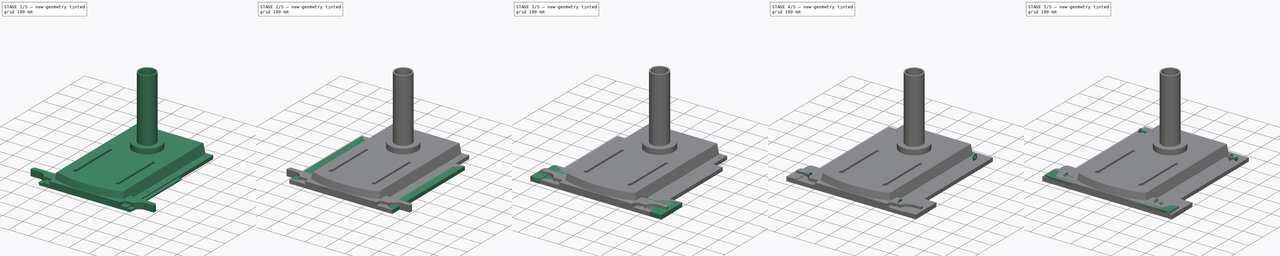
[diagram: build sequence overview — one tinted view per stage of 5, left to right]
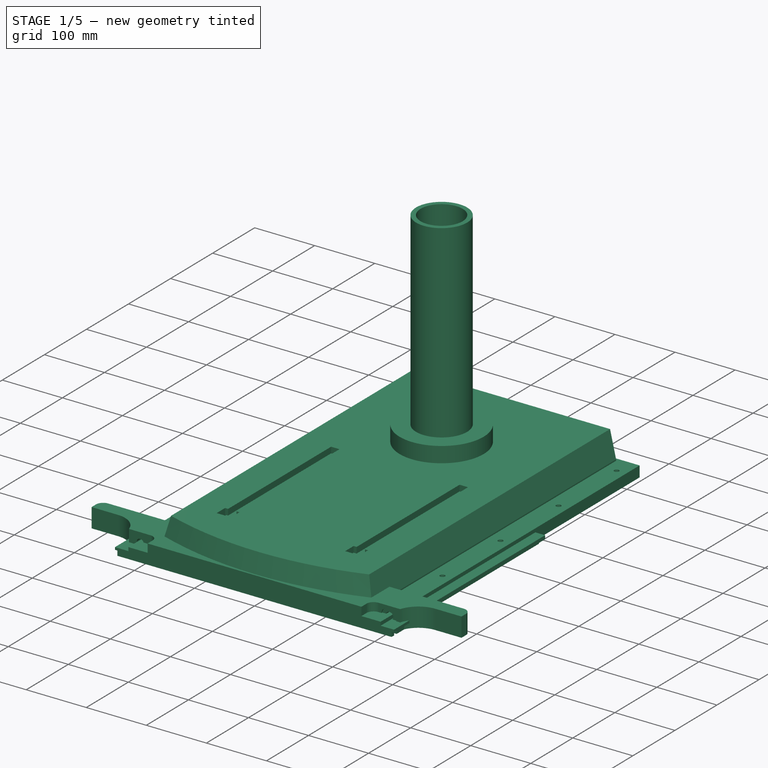
[diagram: stage 1 of 5 — iso view after this stage's code; geometry added in this stage tinted green]
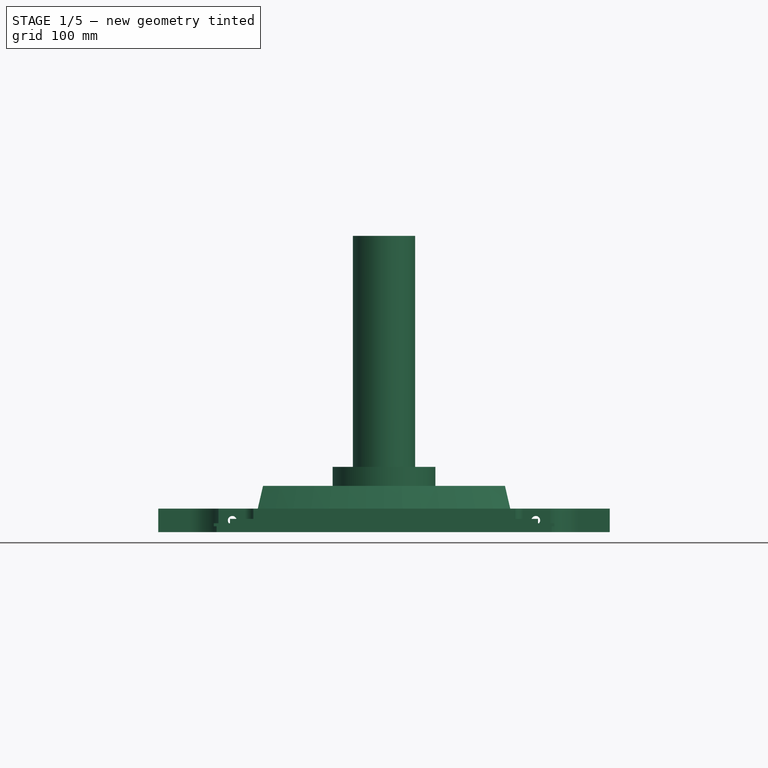
[diagram: stage 1 of 5 — front view after this stage's code; geometry added in this stage tinted green]
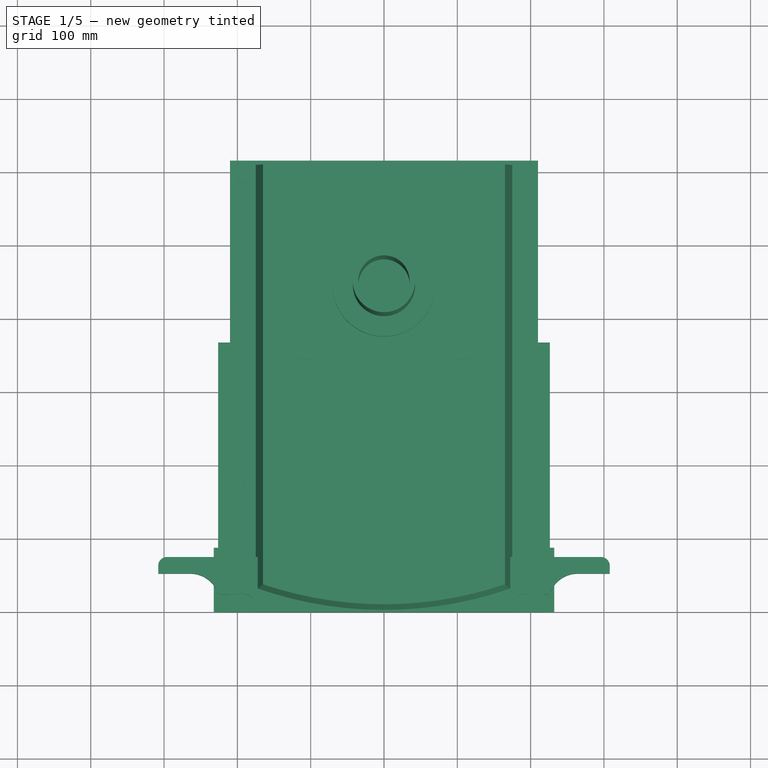
[diagram: stage 1 of 5 — top view after this stage's code; geometry added in this stage tinted green]
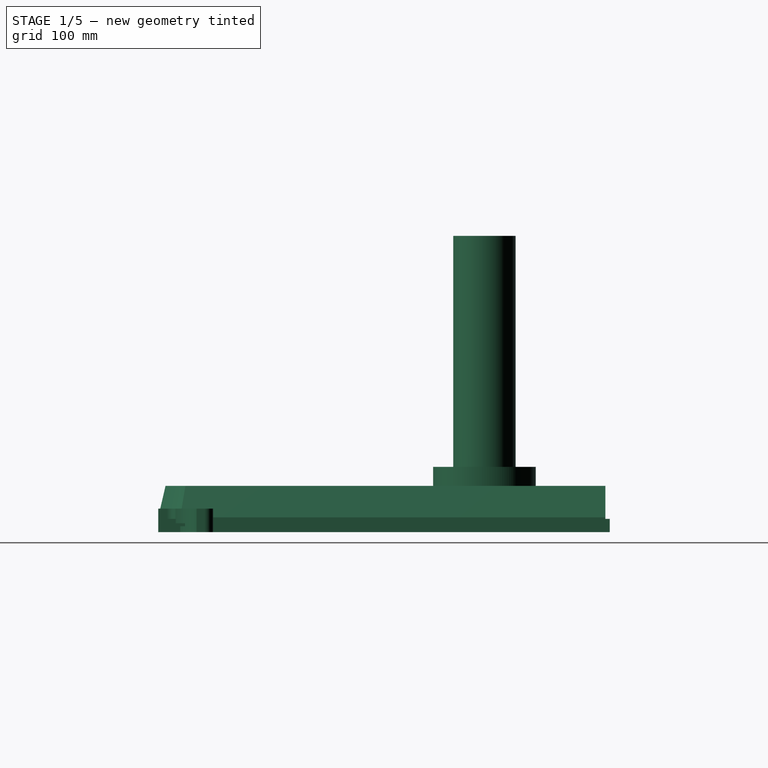
[diagram: stage 1 of 5 — right view after this stage's code; geometry added in this stage tinted green]
FCSTD DOCUMENT  (FreeCAD 0.22R34789 (Git))
Label: drill_press_mobile_base
License: All rights reserved
LicenseURL: http://en.wikipedia.org/wiki/All_rights_reserved
objects: Sketcher::SketchObject×73, PartDesign::Pocket×48, PartDesign::Pad×25, PartDesign::Body×25, PartDesign::Mirrored×19, Part::FeaturePython×13, PartDesign::LinearPattern×5, App::Part×4, App::DocumentObjectGroup×2, PartDesign::MultiTransform×2, Spreadsheet::Sheet×1, PartDesign::FeatureBase×1
note: 284 computed .brp shape members not serialized (recipe doc carries the construction recipe); baked Part::Feature solids carry a one-line shape summary decoded from their .brp

FEATURE [PartDesign::Body] Body023  label="sc_drawer_right"
  Group = -> [Sketch066,Pad024,Sketch067,Pocket040,Mirrored015,Sketch068,Pocket041]
  Origin = -> Origin027
  Placement = pos=(220.3,178,0) rot=(0.57735,0.57735,0.57735;2.0944rad)
  Tip = -> Pocket041
  expr: .Placement.Base.x = <<sk:sc_drawer_front_basic>>.Constraints.drawer_front_length / 2 - Spreadsheet.ply_12
  expr: .Placement.Base.y = Spreadsheet.sc_drawer_depth / 2 - Spreadsheet.ply_12
FEATURE [Sketcher::SketchObject] Sketch069  label="sk:sc_drawer_front_basic002"
  FullyConstrained = true
  MapMode = 5
  Support = -> [XY_Plane030]
  expr: .Constraints.drawer_front_length = Spreadsheet.sc_drawer_width
  expr: Constraints[10] = Spreadsheet.sc_drawer_height
  sketch-geometry (4):
    g0: LineSegment StartX=-232.3 StartY=88 StartZ=0 EndX=232.3 EndY=88 EndZ=0
    g1: LineSegment StartX=232.3 StartY=88 StartZ=0 EndX=232.3 EndY=0 EndZ=0
    g2: LineSegment StartX=232.3 StartY=0 StartZ=0 EndX=-232.3 EndY=0 EndZ=0
    g3: LineSegment StartX=-232.3 StartY=0 StartZ=0 EndX=-232.3 EndY=88 EndZ=0
  constraints (11):
    c: Coincident(g0,g1)
    c: Coincident(g1,g2)
    c: Coincident(g2,g3)
    c: Coincident(g3,g0)
    c: Horizontal(g0)
    c: Horizontal(g2)
    c: Vertical(g1)
    c: Vertical(g3)
    c: Symmetric(g2,g1,g-1)
    c: DistanceX(g2,g2) = 464.6  'drawer_front_length'
    c: DistanceY(g3,g3) = 88
FEATURE [PartDesign::Pad] Pad025
  Direction = (0,0,1)
  Length = 12
  Length2 = 10
  Profile = -> Sketch069
  ReferenceAxis = -> Sketch069 [N_Axis]
  Type = 0
  expr: Length = Spreadsheet.ply_12
FEATURE [Sketcher::SketchObject] Sketch070
  ExternalGeometry = -> [Pad025]
  FullyConstrained = true
  MapMode = 5
  Placement = pos=(0,0,0) rot=(1,0,0;3.14159rad)
  Support = -> [Pad025]
  expr: Constraints[9] = Spreadsheet.ply_12 / 3
  sketch-geometry (4):
    g0: LineSegment StartX=-232.3 StartY=0 StartZ=0 EndX=-228.3 EndY=0 EndZ=0
    g1: LineSegment StartX=-228.3 StartY=0 StartZ=0 EndX=-228.3 EndY=-88 EndZ=0
    g2: LineSegment StartX=-228.3 StartY=-88 StartZ=0 EndX=-232.3 EndY=-88 EndZ=0
    g3: LineSegment StartX=-232.3 StartY=-88 StartZ=0 EndX=-232.3 EndY=0 EndZ=0
  constraints (10):
    c: Coincident(g0,g1)
    c: Coincident(g1,g2)
    c: Coincident(g2,g3)
    c: Coincident(g3,g0)
    c: Horizontal(g0)
    c: Horizontal(g2)
    c: Vertical(g1)
    c: Coincident(g0,g-3)
    c: Coincident(g2,g-3)
    c: DistanceX(g2,g2) = 4
FEATURE [PartDesign::Pocket] Pocket042
  BaseFeature = -> Pad025
  Direction = (0,0,1)
  Length = 8
  Length2 = 5
  Profile = -> Sketch070
  ReferenceAxis = -> Sketch070 [N_Axis]
  Type = 0
  expr: Length = 2 * Spreadsheet.ply_12 / 3
FEATURE [PartDesign::Mirrored] Mirrored016
  BaseFeature = -> Pocket042
  MirrorPlane = -> Sketch070 [V_Axis]
  Originals = -> [Pocket042]
FEATURE [Sketcher::SketchObject] Sketch071
  FullyConstrained = true
  MapMode = 5
  Placement = pos=(0,0,0) rot=(1,0,0;3.14159rad)
  Support = -> [Mirrored016]
  expr: Constraints[7] = Spreadsheet.ply_6
  expr: Constraints[8] = Spreadsheet.ply_6
  expr: Constraints[9] = Sketch069.Constraints.drawer_front_length - 2 * Spreadsheet.ply_12 / 3
  sketch-geometry (4):
    g0: LineSegment StartX=-228.3 StartY=-6 StartZ=0 EndX=228.3 EndY=-6 EndZ=0
    g1: LineSegment StartX=228.3 StartY=-6 StartZ=0 EndX=228.3 EndY=-12 EndZ=0
    g2: LineSegment StartX=228.3 StartY=-12 StartZ=0 EndX=-228.3 EndY=-12 EndZ=0
    g3: LineSegment StartX=-228.3 StartY=-12 StartZ=0 EndX=-228.3 EndY=-6 EndZ=0
  constraints (11):
    c: Coincident(g0,g1)
    c: Coincident(g1,g2)
    c: Coincident(g2,g3)
    c: Coincident(g3,g0)
    c: Horizontal(g2)
    c: Vertical(g1)
    c: Vertical(g3)
    c: DistanceY(g0,g-1) = 6
    c: DistanceY(g3,g3) = 6
    c: DistanceX(g0,g0) = 456.6
    c: Symmetric(g0,g0,g-2)
FEATURE [PartDesign::Pocket] Pocket043
  BaseFeature = -> Mirrored016
  Direction = (0,0,1)
  Length = 6
  Length2 = 5
  Profile = -> Sketch071
  ReferenceAxis = -> Sketch071 [N_Axis]
  Type = 0
  expr: Length = Spreadsheet.ply_6
FEATURE [PartDesign::Body] Body024  label="sc_drawer_back"
  Group = -> [Sketch069,Pad025,Sketch070,Pocket042,Mirrored016,Sketch071,Pocket043]
  Origin = -> Origin028
  Placement = pos=(0,356,0) rot=(0,0.707107,0.707107;3.14159rad)
  Tip = -> Pocket043
  expr: .Placement.Base.y = Spreadsheet.sc_drawer_depth - 2 * Spreadsheet.ply_12
FEATURE [Sketcher::SketchObject] Sketch072
  FullyConstrained = true
  MapMode = 5
  Support = -> [XY_Plane031]
  expr: Constraints[10] = Spreadsheet.sc_drawer_depth - 2 * Spreadsheet.ply_6
  expr: Constraints[9] = Spreadsheet.sc_drawer_width - 2 * Spreadsheet.ply_6
  sketch-geometry (4):
    g0: LineSegment StartX=-226.3 StartY=368 StartZ=0 EndX=226.3 EndY=368 EndZ=0
    g1: LineSegment StartX=226.3 StartY=368 StartZ=0 EndX=226.3 EndY=0 EndZ=0
    g2: LineSegment StartX=226.3 StartY=0 StartZ=0 EndX=-226.3 EndY=0 EndZ=0
    g3: LineSegment StartX=-226.3 StartY=0 StartZ=0 EndX=-226.3 EndY=368 EndZ=0
  constraints (11):
    c: Coincident(g0,g1)
    c: Coincident(g1,g2)
    c: Coincident(g2,g3)
    c: Coincident(g3,g0)
    c: Horizontal(g0)
    c: Horizontal(g2)
    c: Vertical(g1)
    c: Vertical(g3)
    c: Symmetric(g2,g1,g-1)
    c: DistanceX(g2,g2) = 452.6
    c: DistanceY(g3,g3) = 368
FEATURE [PartDesign::Pad] Pad026
  Direction = (0,0,1)
  Length = 12
  Length2 = 10
  Profile = -> Sketch072
  ReferenceAxis = -> Sketch072 [N_Axis]
  Type = 0
  expr: Length = Spreadsheet.ply_12
FEATURE [Sketcher::SketchObject] Sketch073
  ExternalGeometry = -> [Pad026]
  FullyConstrained = true
  MapMode = 5
  Placement = pos=(0,0,0) rot=(1,0,0;3.14159rad)
  Support = -> [Pad026]
  expr: Constraints[7] = Spreadsheet.ply_6
  sketch-geometry (4):
    g0: LineSegment StartX=-226.3 StartY=0 StartZ=0 EndX=226.3 EndY=0 EndZ=0
    g1: LineSegment StartX=226.3 StartY=0 StartZ=0 EndX=226.3 EndY=-6 EndZ=0
    g2: LineSegment StartX=226.3 StartY=-6 StartZ=0 EndX=-226.3 EndY=-6 EndZ=0
    g3: LineSegment StartX=-226.3 StartY=-6 StartZ=0 EndX=-226.3 EndY=0 EndZ=0
  constraints (10):
    c: Coincident(g0,g1)
    c: Coincident(g1,g2)
    c: Coincident(g2,g3)
    c: Coincident(g3,g0)
    c: Horizontal(g2)
    c: Vertical(g1)
    c: Vertical(g3)
    c: DistanceY(g3,g3) = 6
    c: Coincident(g0,g-3)
    c: Coincident(g0,g-3)
FEATURE [PartDesign::Pocket] Pocket044
  BaseFeature = -> Pad026
  Direction = (0,0,1)
  Length = 6
  Length2 = 5
  Profile = -> Sketch073
  ReferenceAxis = -> Sketch073 [N_Axis]
  Type = 0
  expr: Length = Spreadsheet.ply_6
FEATURE [Sketcher::SketchObject] Sketch074
  ExternalGeometry = -> [Pocket044]
  FullyConstrained = true
  MapMode = 5
  Placement = pos=(0,0,0) rot=(1,0,0;3.14159rad)
  Support = -> [Pocket044]
  expr: Constraints[9] = Spreadsheet.ply_6
  sketch-geometry (4):
    g0: LineSegment StartX=-226.3 StartY=-362 StartZ=0 EndX=226.3 EndY=-362 EndZ=0
    g1: LineSegment StartX=226.3 StartY=-362 StartZ=0 EndX=226.3 EndY=-368 EndZ=0
    g2: LineSegment StartX=226.3 StartY=-368 StartZ=0 EndX=-226.3 EndY=-368 EndZ=0
    g3: LineSegment StartX=-226.3 StartY=-368 StartZ=0 EndX=-226.3 EndY=-362 EndZ=0
  constraints (10):
    c: Coincident(g0,g1)
    c: Coincident(g1,g2)
    c: Coincident(g2,g3)
    c: Coincident(g3,g0)
    c: Horizontal(g0)
    c: Vertical(g1)
    c: Vertical(g3)
    c: Coincident(g2,g-3)
    c: Coincident(g1,g-3)
    c: DistanceY(g1,g1) = 6
FEATURE [PartDesign::Pocket] Pocket045
  BaseFeature = -> Pocket044
  Direction = (0,0,1)
  Length = 6
  Length2 = 5
  Profile = -> Sketch074
  ReferenceAxis = -> Sketch074 [N_Axis]
  Type = 0
  expr: Length = Spreadsheet.ply_6
FEATURE [Sketcher::SketchObject] Sketch075
  ExternalGeometry = -> [Pocket045]
  FullyConstrained = true
  MapMode = 5
  Placement = pos=(0,0,0) rot=(1,0,0;3.14159rad)
  Support = -> [Pocket045]
  expr: Constraints[7] = Spreadsheet.ply_6
  sketch-geometry (4):
    g0: LineSegment StartX=-226.3 StartY=-6 StartZ=0 EndX=-220.3 EndY=-6 EndZ=0
    g1: LineSegment StartX=-220.3 StartY=-6 StartZ=0 EndX=-220.3 EndY=-362 EndZ=0
    g2: LineSegment StartX=-220.3 StartY=-362 StartZ=0 EndX=-226.3 EndY=-362 EndZ=0
    g3: LineSegment StartX=-226.3 StartY=-362 StartZ=0 EndX=-226.3 EndY=-6 EndZ=0
  constraints (10):
    c: Coincident(g0,g1)
    c: Coincident(g1,g2)
    c: Coincident(g2,g3)
    c: Coincident(g3,g0)
    c: Horizontal(g0)
    c: Horizontal(g2)
    c: Vertical(g1)
    c: DistanceX(g0,g0) = 6
    c: Coincident(g2,g-3)
    c: Coincident(g0,g-3)
FEATURE [PartDesign::Pocket] Pocket046
  BaseFeature = -> Pocket045
  Direction = (0,0,1)
  Length = 6
  Length2 = 5
  Profile = -> Sketch075
  ReferenceAxis = -> Sketch075 [N_Axis]
  Type = 0
  expr: Length = Spreadsheet.ply_6
FEATURE [PartDesign::Mirrored] Mirrored017
  BaseFeature = -> Pocket046
  MirrorPlane = -> Sketch075 [V_Axis]
  Originals = -> [Pocket046]
FEATURE [PartDesign::Body] Body025  label="sc_drawer_bottom"
  Group = -> [Sketch072,Pad026,Sketch073,Pocket044,Sketch074,Pocket045,Sketch075,Pocket046,Mirrored017]
  Origin = -> Origin029
  Placement = pos=(0,-6,0) rot=(0,0,1;0rad)
  Tip = -> Mirrored017
  expr: .Placement.Base.y = -Spreadsheet.ply_6
FEATURE [App::Part] Part003  label="storage_cabinet_drawer"
  Group = -> [Body021,Body022,Body023,Body024,Body025]
  Origin = -> Origin024
  Placement = pos=(0,-6,168) rot=(0,0,1;0rad)
  expr: .Placement.Base.z = 150 + 18
FEATURE [Sketcher::SketchObject] Sketch076
  FullyConstrained = true
  MapMode = 5
  Support = -> [XY_Plane032]
  expr: Constraints[17] = 2 * Spreadsheet.base_radius
  expr: Constraints[7] = Spreadsheet.drill_press_iron_base_depth
  expr: Constraints[8] = Spreadsheet.drill_press_iron_base_height
  sketch-geometry (8):
    g0: LineSegment StartX=-296 StartY=75 StartZ=0 EndX=296 EndY=75 EndZ=0
    g1: LineSegment StartX=308 StartY=63 StartZ=0 EndX=308 EndY=0 EndZ=0
    g2: LineSegment StartX=308 StartY=0 StartZ=0 EndX=-308 EndY=0 EndZ=0
    g3: LineSegment StartX=-308 StartY=0 StartZ=0 EndX=-308 EndY=63 EndZ=0
    g4: ArcOfCircle CenterX=-296 CenterY=63 CenterZ=0 NormalX=0 NormalY=0 NormalZ=1 AngleXU=0 Radius=12 StartAngle=1.5708 EndAngle=3.14159
    g5: GeomPoint X=-308 Y=75 Z=0
    g6: ArcOfCircle CenterX=296 CenterY=63 CenterZ=0 NormalX=0 NormalY=0 NormalZ=1 AngleXU=0 Radius=12 StartAngle=0 EndAngle=1.5708
    g7: GeomPoint X=308 Y=75 Z=0
  constraints (19):
    c: Coincident(g1,g2)
    c: Coincident(g2,g3)
    c: Horizontal(g0)
    c: Horizontal(g2)
    c: Vertical(g1)
    c: Vertical(g3)
    c: Symmetric(g2,g1,g-1)
    c: DistanceX(g2,g1) = 616
    c: DistanceY(g3,g5) = 75
    c: PointOnObject(g5,g3)
    c: PointOnObject(g5,g0)
    c: Tangent(g3,g4) = 1.5708
    c: Tangent(g0,g4) = 1.5708
    c: PointOnObject(g7,g0)
    c: PointOnObject(g7,g1)
    c: Tangent(g0,g6) = 1.5708
    c: Tangent(g1,g6) = 1.5708
    c: Radius(g4) = 12
    c: Equal(g4,g6)
FEATURE [PartDesign::Pad] Pad027
  Direction = (0,0,1)
  Length = 32
  Length2 = 10
  Profile = -> Sketch076
  ReferenceAxis = -> Sketch076 [N_Axis]
  Type = 0
  expr: Length = Spreadsheet.cleat_depth
FEATURE [Sketcher::SketchObject] Sketch077
  FullyConstrained = true
  MapMode = 5
  Placement = pos=(0,0,32) rot=(0,0,1;0rad)
  Support = -> [Pad027]
  expr: Constraints[14] = 2 * Spreadsheet.base_radius
  expr: Constraints[9] = Spreadsheet.drill_press_iron_base_depth / 2
  sketch-geometry (6):
    g0: LineSegment StartX=-308 StartY=24 StartZ=0 EndX=-190 EndY=24 EndZ=0
    g1: LineSegment StartX=-178 StartY=12 StartZ=0 EndX=-178 EndY=0 EndZ=0
    g2: LineSegment StartX=-178 StartY=0 StartZ=0 EndX=-308 EndY=0 EndZ=0
    g3: LineSegment StartX=-308 StartY=0 StartZ=0 EndX=-308 EndY=24 EndZ=0
    g4: ArcOfCircle CenterX=-190 CenterY=12 CenterZ=0 NormalX=0 NormalY=0 NormalZ=1 AngleXU=0 Radius=12 StartAngle=0 EndAngle=1.5708
    g5: GeomPoint X=-178 Y=24 Z=0
  constraints (16):
    c: Coincident(g1,g2)
    c: Coincident(g2,g3)
    c: Coincident(g3,g0)
    c: Horizontal(g0)
    c: Horizontal(g2)
    c: Vertical(g1)
    c: Vertical(g3)
    c: DistanceY(g-1,g1) = 0
    c: DistanceY(g-1,g5) = 24
    c: DistanceX(g0,g-1) = 308
    c: PointOnObject(g5,g0)
    c: PointOnObject(g5,g1)
    c: Tangent(g0,g4) = 1.5708
    c: Tangent(g1,g4) = 1.5708
    c: Radius(g4) = 12
    c: DistanceX(g2,g2) = 130
FEATURE [PartDesign::Pocket] Pocket047
  BaseFeature = -> Pad027
  Direction = (0,0,-1)
  Length = 32
  Length2 = 5
  Profile = -> Sketch077
  ReferenceAxis = -> Sketch077 [N_Axis]
  Type = 0
  expr: Length = Spreadsheet.cleat_depth
FEATURE [PartDesign::Mirrored] Mirrored018
  BaseFeature = -> Pocket047
  MirrorPlane = -> Sketch077 [V_Axis]
  Originals = -> [Pocket047]
FEATURE [Sketcher::SketchObject] Sketch078
  FullyConstrained = true
  MapMode = 5
  Placement = pos=(0,0,32) rot=(0,0,1;0rad)
  Support = -> [Mirrored018]
  expr: Constraints[0] = Spreadsheet.drill_press_iron_base_depth / 2 - Spreadsheet.wheel_distance_l
  expr: Constraints[11] = Spreadsheet.drill_press_iron_base_depth / 2 - Spreadsheet.wheel_distance_l
  expr: Constraints[1] = Spreadsheet.wheel_distance_h
  expr: Constraints[2] = Spreadsheet.wheel_od + Spreadsheet.base_radius
  expr: Constraints[8] = Spreadsheet.drill_press_iron_base_depth / 2 - Spreadsheet.wheel_distance_l
  expr: Constraints[9] = (Spreadsheet.wheel_od + Spreadsheet.base_radius) / 2 - Spreadsheet.wheel_distance_h
  sketch-geometry (4):
    g0: ArcOfCircle CenterX=-264.5 CenterY=12 CenterZ=0 NormalX=0 NormalY=0 NormalZ=1 AngleXU=0 Radius=40.5 StartAngle=4.71239 EndAngle=7.85398
    g1: LineSegment StartX=-345.5 StartY=52.5 StartZ=0 EndX=-264.5 EndY=52.5 EndZ=0
    g2: LineSegment StartX=-264.5 StartY=-28.5 StartZ=0 EndX=-345.5 EndY=-28.5 EndZ=0
    g3: LineSegment StartX=-345.5 StartY=-28.5 StartZ=0 EndX=-345.5 EndY=52.5 EndZ=0
  constraints (14):
    c: DistanceX(g0,g-1) = 264.5
    c: DistanceY(g-1,g0) = 12
    c: Diameter(g0) = 81
    c: Coincident(g2,g3)
    c: Coincident(g3,g1)
    c: Horizontal(g1)
    c: Horizontal(g2)
    c: Vertical(g3)
    c: DistanceX(g2,g-1) = 264.5
    c: DistanceY(g2,g-1) = 28.5
    c: Coincident(g0,g1)
    c: DistanceX(g0,g-1) = 264.5
    c: Equal(g2,g3)
    c: Tangent(g2,g0,g0) = 1.5708
FEATURE [PartDesign::Pocket] Pocket048
  BaseFeature = -> Mirrored018
  Direction = (0,0,-1)
  Length = 32
  Length2 = 5
  Profile = -> Sketch078
  ReferenceAxis = -> Sketch078 [N_Axis]
  Type = 0
  expr: Length = Spreadsheet.cleat_depth
FEATURE [PartDesign::Mirrored] Mirrored019
  BaseFeature = -> Pocket048
  MirrorPlane = -> Sketch078 [V_Axis]
  Originals = -> [Pocket048]
FEATURE [Sketcher::SketchObject] Sketch079
  FullyConstrained = true
  MapMode = 5
  Placement = pos=(0,0,0) rot=(1,0,0;3.14159rad)
  Support = -> [Mirrored019]
  expr: Constraints[10] = Spreadsheet.drill_press_iron_base_depth / 2 - 4 * Spreadsheet.base_radius
  expr: Constraints[6] = Spreadsheet.drill_press_iron_base_height / 3
  expr: Constraints[7] = 1 / 3 * Spreadsheet.drill_press_iron_base_depth / 2
  expr: Constraints[8] = Spreadsheet.drill_press_iron_base_height - (Spreadsheet.drill_press_iron_base_height - (Spreadsheet.wheel_distance_h + (Spreadsheet.wheel_od + Spreadsheet.base_radius) / 2)) / 2
  sketch-geometry (5):
    g0: Circle CenterX=-284 CenterY=-63.75 CenterZ=0 NormalX=0 NormalY=0 NormalZ=1 AngleXU=0 Radius=4
    g1: Circle CenterX=-102.667 CenterY=-25 CenterZ=0 NormalX=0 NormalY=0 NormalZ=1 AngleXU=0 Radius=4
    g2: Circle CenterX=-3.7e-15 CenterY=-25 CenterZ=0 NormalX=0 NormalY=0 NormalZ=1 AngleXU=0 Radius=4
    g3: Circle CenterX=102.667 CenterY=-25 CenterZ=0 NormalX=0 NormalY=0 NormalZ=1 AngleXU=0 Radius=4
    g4: Circle CenterX=284 CenterY=-63.75 CenterZ=0 NormalX=0 NormalY=0 NormalZ=1 AngleXU=0 Radius=4
  constraints (12):
    c: Equal(g0,g1)
    c: Equal(g1,g2)
    c: Equal(g2,g3)
    c: Equal(g3,g4)
    c: Symmetric(g1,g3,g-2)
    c: Symmetric(g1,g3,g2)
    c: DistanceY(g2,g-1) = 25
    c: DistanceX(g1,g-1) = 102.667
    c: DistanceY(g0,g-1) = 63.75
    c: Symmetric(g0,g4,g-2)
    c: DistanceX(g0,g-1) = 284
    c: Diameter(g0) = 8
FEATURE [PartDesign::Pocket] Pocket049
  BaseFeature = -> Mirrored019
  Direction = (0,0,1)
  Length = 10
  Length2 = 5
  Profile = -> Sketch079
  ReferenceAxis = -> Sketch079 [N_Axis]
  Type = 0
FEATURE [Sketcher::SketchObject] Sketch080
  FullyConstrained = true
  MapMode = 5
  Placement = pos=(0,24,0) rot=(1,0,0;1.5708rad)
  Support = -> [Pocket049]
  expr: Constraints[0] = Spreadsheet.cleat_depth / 2
  expr: Constraints[1] = (Spreadsheet.drill_press_iron_base_depth / 2 - Spreadsheet.wheel_distance_l - (Spreadsheet.wheel_od + Spreadsheet.base_radius) / 2 - (Spreadsheet.drill_press_iron_base_depth / 2 - 130 mm + 12 mm)) / 2 + Spreadsheet.drill_press_iron_base_depth / 2 - 130 mm + 12 mm
  expr: Constraints[2] = Spreadsheet.DIN1624_M10_d1
  sketch-geometry (1):
    g0: Circle CenterX=207 CenterY=16 CenterZ=0 NormalX=0 NormalY=0 NormalZ=1 AngleXU=0 Radius=6
  constraints (3):
    c: DistanceY(g-1,g0) = 16
    c: DistanceX(g-1,g0) = 207
    c: Diameter(g0) = 12
FEATURE [PartDesign::Pocket] Pocket050
  BaseFeature = -> Pocket049
  Direction = (0,1,-2e-16)
  Length = 51
  Length2 = 5
  Profile = -> Sketch080
  ReferenceAxis = -> Sketch080 [N_Axis]
  Type = 0
  expr: Length = Spreadsheet.drill_press_iron_base_height - 24 mm
FEATURE [Sketcher::SketchObject] Sketch081
  ExternalGeometry = -> [Pocket050]
  FullyConstrained = true
  MapMode = 5
  Placement = pos=(0,24,0) rot=(1,0,0;1.5708rad)
  Support = -> [Pocket050]
  expr: Constraints[1] = Spreadsheet.DIN1624_M10_D
  sketch-geometry (1):
    g0: Circle CenterX=207 CenterY=16 CenterZ=0 NormalX=0 NormalY=0 NormalZ=1 AngleXU=0 Radius=12.75
  constraints (2):
    c: Coincident(g0,g-3)
    c: Diameter(g0) = 25.5
FEATURE [PartDesign::Pocket] Pocket051
  BaseFeature = -> Pocket050
  Direction = (0,1,-2e-16)
  Length = 1.8
  Length2 = 5
  Profile = -> Sketch081
  ReferenceAxis = -> Sketch081 [N_Axis]
  Type = 0
  expr: Length = 1.5 * Spreadsheet.DIN1624_M10_a
FEATURE [PartDesign::Mirrored] Mirrored020
  BaseFeature = -> Pocket051
  MirrorPlane = -> Sketch080 [V_Axis]
  Originals = -> [Pocket050]
FEATURE [PartDesign::Body] Body026  label="wheel_blocking_right"
  Group = -> [Sketch076,Pad027,Sketch077,Pocket047,Mirrored018,Sketch078,Pocket048,Mirrored019,Sketch079,Pocket049,Sketch080,Pocket050,Sketch081,Pocket051,Mirrored020]
  Origin = -> Origin030
  Placement = pos=(210,308,18) rot=(0.57735,0.57735,0.57735;2.0944rad)
  Tip = -> Mirrored020
  expr: .Placement.Base.x = Spreadsheet.drill_press_iron_base_width / 2 + Spreadsheet.cleat_depth
  expr: .Placement.Base.y = Spreadsheet.drill_press_iron_base_depth / 2
  expr: .Placement.Base.z = Spreadsheet.ply_18
FEATURE [App::DocumentObjectGroup] Group001  label="wheel_blockings"
  Group = -> [Body007,Body026]
FEATURE [Sketcher::SketchObject] Sketch
  FullyConstrained = true
  MapMode = 5
  Support = -> [XY_Plane]
  expr: Constraints[8] = Spreadsheet.drill_press_iron_base_depth
  expr: Constraints[9] = Spreadsheet.drill_press_iron_base_width + 2 * 32 mm
  sketch-geometry (4):
    g0: LineSegment StartX=-210 StartY=616 StartZ=0 EndX=210 EndY=616 EndZ=0
    g1: LineSegment StartX=210 StartY=616 StartZ=0 EndX=210 EndY=0 EndZ=0
    g2: LineSegment StartX=210 StartY=-2e-16 StartZ=0 EndX=-210 EndY=-2e-16 EndZ=0
    g3: LineSegment StartX=-210 StartY=-2e-16 StartZ=0 EndX=-210 EndY=616 EndZ=0
  constraints (11):
    c: Coincident(g0,g1)
    c: Coincident(g1,g2)
    c: Coincident(g2,g3)
    c: Coincident(g3,g0)
    c: Horizontal(g0)
    c: Horizontal(g2)
    c: Vertical(g1)
    c: Vertical(g3)
    c: DistanceY(g3,g3) = 616
    c: DistanceX(g2,g2) = 420
    c: Symmetric(g2,g1,g-1)
FEATURE [PartDesign::Pad] Pad
  Direction = (0,0,1)
  Length = 18
  Length2 = 10
  Profile = -> Sketch
  ReferenceAxis = -> Sketch [N_Axis]
  Type = 0
  expr: Length = Spreadsheet.ply_18
FEATURE [Sketcher::SketchObject] Sketch014
  FullyConstrained = true
  MapMode = 5
  Placement = pos=(0,0,18) rot=(0,0,1;0rad)
  Support = -> [Pad]
  expr: Constraints[0] = 8 mm
  expr: Constraints[1] = (Spreadsheet.drill_press_iron_base_width + Spreadsheet.cleat_depth) / 2
  expr: Constraints[2] = 32 mm
  sketch-geometry (1):
    g0: Circle CenterX=-194 CenterY=32 CenterZ=0 NormalX=0 NormalY=0 NormalZ=1 AngleXU=0 Radius=4
  constraints (3):
    c: Diameter(g0) = 8
    c: DistanceX(g0,g-1) = 194
    c: DistanceY(g-1,g0) = 32
FEATURE [PartDesign::Pocket] Pocket006
  BaseFeature = -> Pad
  Direction = (0,0,-1)
  Length = 9
  Length2 = 5
  Profile = -> Sketch014
  ReferenceAxis = -> Sketch014 [N_Axis]
  Type = 0
  expr: Length = Spreadsheet.ply_18 / 2
FEATURE [PartDesign::LinearPattern] LinearPattern001
  Direction = -> Sketch014 [V_Axis]
  Length = 552
  Mode = 0
  Occurrences = 5
  Offset = 138
  expr: Length = Spreadsheet.drill_press_iron_base_depth - 2 * 32 mm
FEATURE [PartDesign::LinearPattern] LinearPattern
  Direction = -> X_Axis
  Length = 388
  Mode = 0
  Occurrences = 2
  Offset = 388
  expr: Length = Spreadsheet.drill_press_iron_base_width + Spreadsheet.cleat_depth
FEATURE [PartDesign::MultiTransform] MultiTransform
  BaseFeature = -> Pocket006
  Originals = -> [Pocket006]
  Transformations = -> [LinearPattern,LinearPattern001]
FEATURE [PartDesign::Body] Body  label="base"
  Group = -> [Sketch,Pad,Sketch014,Pocket006,MultiTransform,LinearPattern,LinearPattern001]
  Origin = -> Origin
  Tip = -> MultiTransform
FEATURE [App::Part] Part  label="mobile_base"
  Group = -> [Body,Body001,Group,Body003,Body004,Body005,Body006,Washer004,Washer005,Washer006,Washer007,Screw,Screw001,Screw002,Screw003,Group001,Body007,Body008,Washer,Washer008,Washer009,Washer010,Body026]
  Origin = -> Origin003
FEATURE [Part::FeaturePython] b_drill_press_001_  label="drill_press_001"  # a2plus imported part (geometry in sourceFile) (typed FeaturePython)
  Placement = pos=(0,0,18) rot=(0,0,1;0rad)
  a2p_Version = 0.4.61
  fixedPosition = true
  objectType = a2pPart
  sourceFile = ./drill_press.FCStd
  subassemblyImport = false
  timeLastImport = 1.7042e+09
  updateColors = true
  expr: .Placement.Base.z = Spreadsheet.ply_18
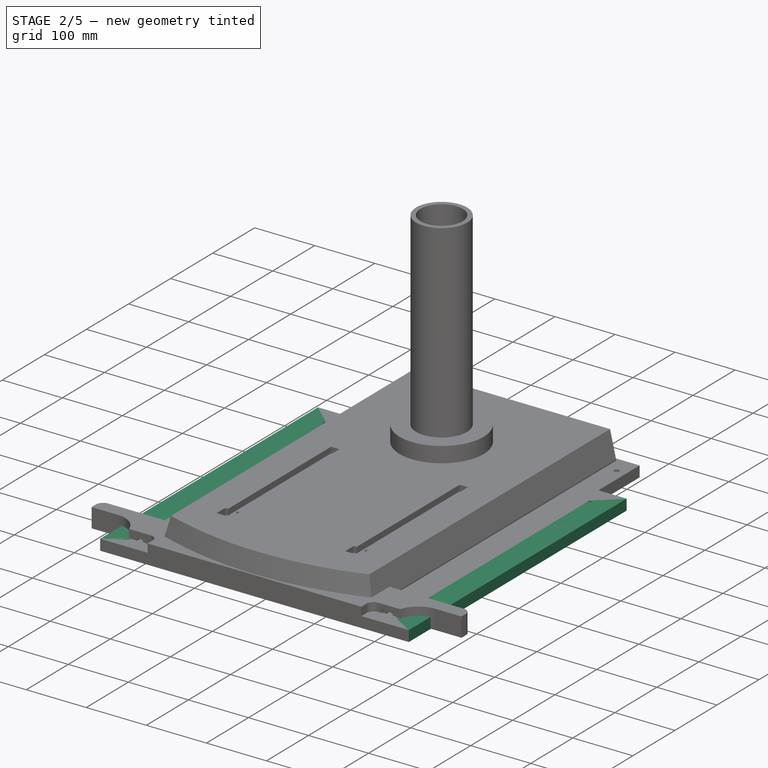
[diagram: stage 2 of 5 — iso view after this stage's code; geometry added in this stage tinted green]
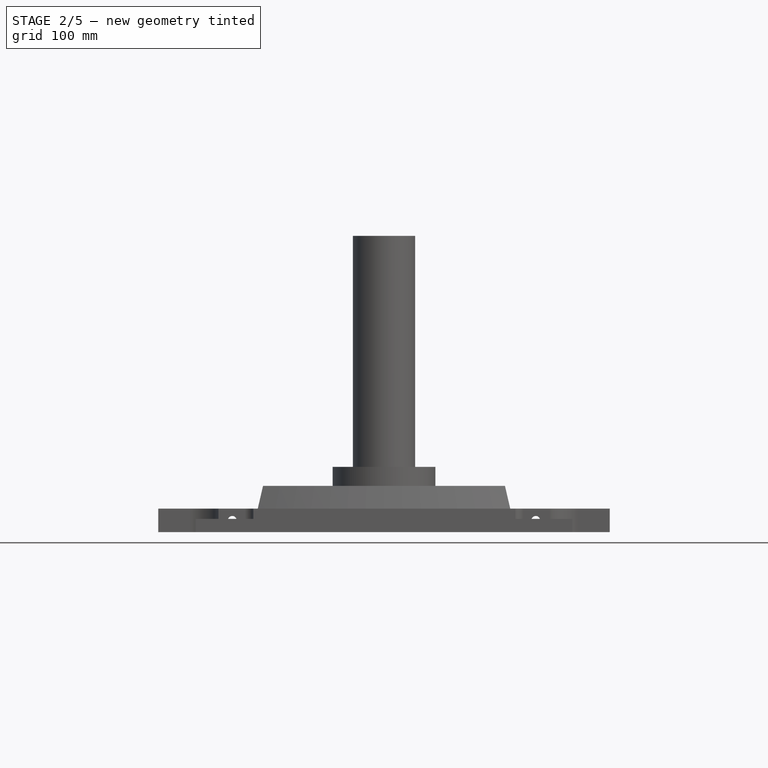
[diagram: stage 2 of 5 — front view after this stage's code; geometry added in this stage tinted green]
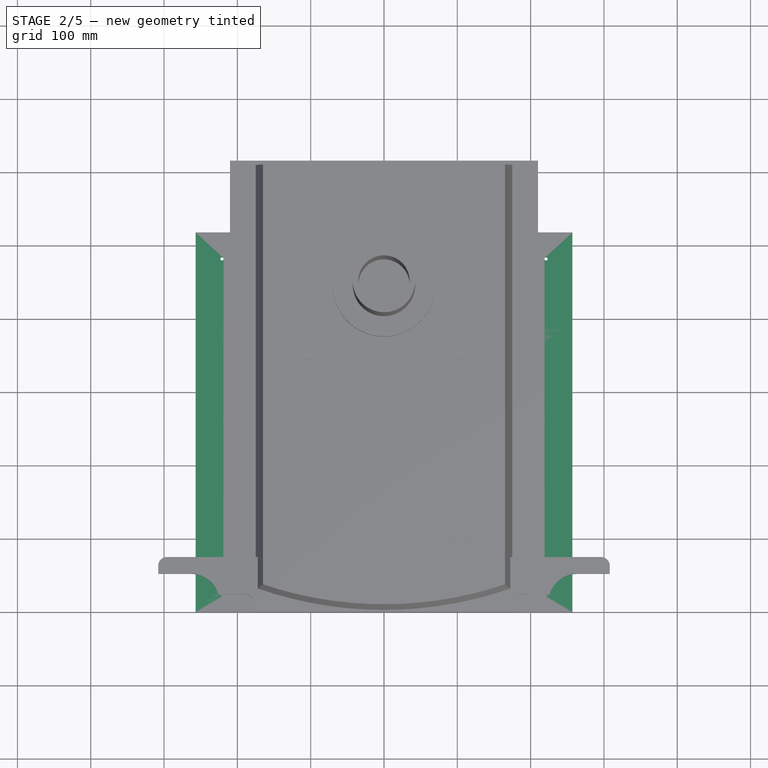
[diagram: stage 2 of 5 — top view after this stage's code; geometry added in this stage tinted green]
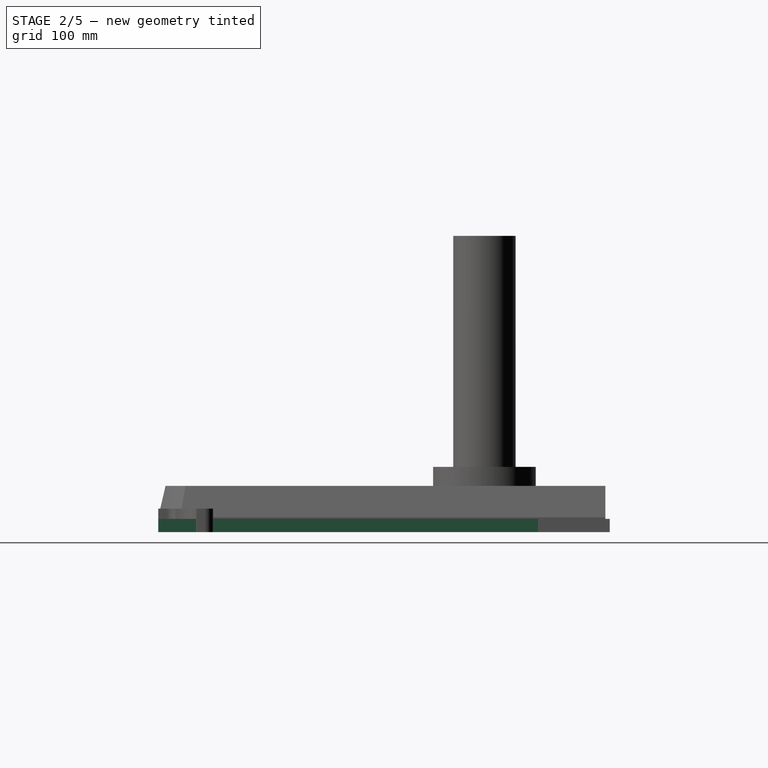
[diagram: stage 2 of 5 — right view after this stage's code; geometry added in this stage tinted green]
FEATURE [PartDesign::Body] Body016  label="sc_side_left"
  Group = -> [Sketch046,Pad017,Sketch047,Pocket029,Sketch048,Pocket030]
  Origin = -> Origin019
  Placement = pos=(-263,205,530) rot=(0.57735,-0.57735,0.57735;4.18879rad)
  Tip = -> Pocket030
  expr: .Placement.Base.x = -Spreadsheet.storage_cabinet_base_width / 2
  expr: .Placement.Base.y = <<sc:bottom>>.Constraints.bottom_depth / 2
  expr: .Placement.Base.z = Spreadsheet.storage_cabinet_height
FEATURE [Sketcher::SketchObject] Sketch049
  FullyConstrained = true
  MapMode = 5
  Support = -> [XY_Plane020]
  expr: Constraints[10] = Spreadsheet.storage_cabinet_height - 2 * (Spreadsheet.ply_18 - Spreadsheet.ply_12)
  expr: Constraints[9] = <<sc:bottom>>.Constraints.bottom_width
  sketch-geometry (4):
    g0: LineSegment StartX=-257 StartY=518 StartZ=0 EndX=257 EndY=518 EndZ=0
    g1: LineSegment StartX=257 StartY=518 StartZ=0 EndX=257 EndY=0 EndZ=0
    g2: LineSegment StartX=257 StartY=0 StartZ=0 EndX=-257 EndY=0 EndZ=0
    g3: LineSegment StartX=-257 StartY=0 StartZ=0 EndX=-257 EndY=518 EndZ=0
  constraints (11):
    c: Coincident(g0,g1)
    c: Coincident(g1,g2)
    c: Coincident(g2,g3)
    c: Coincident(g3,g0)
    c: Horizontal(g0)
    c: Horizontal(g2)
    c: Vertical(g1)
    c: Vertical(g3)
    c: Symmetric(g2,g1,g-1)
    c: DistanceX(g2,g2) = 514
    c: DistanceY(g3,g3) = 518
FEATURE [PartDesign::Pad] Pad018
  Direction = (0,0,1)
  Length = 18
  Length2 = 10
  Profile = -> Sketch049
  ReferenceAxis = -> Sketch049 [N_Axis]
  Type = 0
  expr: Length = Spreadsheet.ply_18
FEATURE [Sketcher::SketchObject] Sketch050
  FullyConstrained = true
  MapMode = 5
  Placement = pos=(0,0,18) rot=(0,0,1;0rad)
  Support = -> [Pad018]
  expr: Constraints[0] = <<sc:bottom>>.Constraints.bottom_width / 2 - 6 * Spreadsheet.ply_6
  expr: Constraints[1] = Spreadsheet.ply_12 + 4 * Spreadsheet.ply_6
  expr: Constraints[2] = Spreadsheet.mounting_screws_dia
  sketch-geometry (1):
    g0: Circle CenterX=-221 CenterY=36 CenterZ=0 NormalX=0 NormalY=0 NormalZ=1 AngleXU=0 Radius=2.25
  constraints (3):
    c: DistanceX(g0,g-1) = 221
    c: DistanceY(g-1,g0) = 36
    c: Diameter(g0) = 4.5
FEATURE [PartDesign::Pocket] Pocket031
  BaseFeature = -> Pad018
  Direction = (0,0,-1)
  Length = 18
  Length2 = 5
  Profile = -> Sketch050
  ReferenceAxis = -> Sketch050 [N_Axis]
  Type = 0
  expr: Length = Spreadsheet.ply_18
FEATURE [PartDesign::LinearPattern] LinearPattern004
  Direction = -> Sketch050 [V_Axis]
  Length = 446
  Mode = 0
  Occurrences = 3
  Offset = 223
  expr: Length = Spreadsheet.storage_cabinet_height - 2 * (Spreadsheet.ply_18 + 4 * Spreadsheet.base_radius)
FEATURE [PartDesign::Mirrored] Mirrored011
  MirrorPlane = -> Sketch050 [V_Axis]
FEATURE [PartDesign::MultiTransform] MultiTransform001
  BaseFeature = -> Pocket031
  Originals = -> [Pocket031]
  Transformations = -> [LinearPattern004,Mirrored011]
FEATURE [PartDesign::Body] Body017  label="sc_back"
  Group = -> [Sketch049,Pad018,Sketch050,Pocket031,MultiTransform001,LinearPattern004,Mirrored011]
  Origin = -> Origin020
  Placement = pos=(0,410,6) rot=(1,0,0;1.5708rad)
  Tip = -> MultiTransform001
  expr: .Placement.Base.y = <<sc:bottom>>.Constraints.bottom_depth
  expr: .Placement.Base.z = Spreadsheet.ply_6
FEATURE [Sketcher::SketchObject] Sketch051  label="sc:bottom001"
  FullyConstrained = true
  MapMode = 5
  Support = -> [XY_Plane021]
  expr: .Constraints.bottom_depth = Spreadsheet.storage_cabinet_base_depth - Spreadsheet.steel_column_depth
  expr: .Constraints.bottom_width = Spreadsheet.storage_cabinet_base_width - 2 * (Spreadsheet.ply_18 - Spreadsheet.ply_12)
  sketch-geometry (4):
    g0: LineSegment StartX=-257 StartY=410 StartZ=0 EndX=257 EndY=410 EndZ=0
    g1: LineSegment StartX=257 StartY=410 StartZ=0 EndX=257 EndY=0 EndZ=0
    g2: LineSegment StartX=257 StartY=0 StartZ=0 EndX=-257 EndY=0 EndZ=0
    g3: LineSegment StartX=-257 StartY=0 StartZ=0 EndX=-257 EndY=410 EndZ=0
  constraints (11):
    c: Coincident(g0,g1)
    c: Coincident(g1,g2)
    c: Coincident(g2,g3)
    c: Coincident(g3,g0)
    c: Horizontal(g0)
    c: Horizontal(g2)
    c: Vertical(g1)
    c: Vertical(g3)
    c: Symmetric(g2,g1,g-1)
    c: DistanceX(g2,g2) = 514  'bottom_width'
    c: DistanceY(g3,g3) = 410  'bottom_depth'
FEATURE [PartDesign::Pad] Pad019
  Direction = (0,0,1)
  Length = 18
  Length2 = 10
  Profile = -> Sketch051
  ReferenceAxis = -> Sketch051 [N_Axis]
  Type = 0
  expr: Length = Spreadsheet.ply_18
FEATURE [Sketcher::SketchObject] Sketch052
  FullyConstrained = true
  MapMode = 5
  Placement = pos=(0,0,18) rot=(0,0,1;0rad)
  Support = -> [Pad019]
  expr: Constraints[10] = <<sc:bottom001>>.Constraints.bottom_depth
  expr: Constraints[11] = <<sc:bottom001>>.Constraints.bottom_width / 2
  expr: Constraints[8] = <<sc:bottom001>>.Constraints.bottom_width
  expr: Constraints[9] = Spreadsheet.ply_18
  sketch-geometry (4):
    g0: LineSegment StartX=-257 StartY=410 StartZ=0 EndX=257 EndY=410 EndZ=0
    g1: LineSegment StartX=257 StartY=410 StartZ=0 EndX=257 EndY=392 EndZ=0
    g2: LineSegment StartX=257 StartY=392 StartZ=0 EndX=-257 EndY=392 EndZ=0
    g3: LineSegment StartX=-257 StartY=392 StartZ=0 EndX=-257 EndY=410 EndZ=0
  constraints (12):
    c: Coincident(g0,g1)
    c: Coincident(g1,g2)
    c: Coincident(g2,g3)
    c: Coincident(g3,g0)
    c: Horizontal(g0)
    c: Horizontal(g2)
    c: Vertical(g1)
    c: Vertical(g3)
    c: DistanceX(g0,g0) = 514
    c: DistanceY(g2,g0) = 18
    c: DistanceY(g-1,g0) = 410
    c: DistanceX(g0,g-1) = 257
FEATURE [PartDesign::Pocket] Pocket032
  BaseFeature = -> Pad019
  Direction = (0,0,-1)
  Length = 12
  Length2 = 5
  Profile = -> Sketch052
  ReferenceAxis = -> Sketch052 [N_Axis]
  Type = 0
  expr: Length = Spreadsheet.ply_12
FEATURE [Sketcher::SketchObject] Sketch053
  FullyConstrained = true
  MapMode = 5
  Placement = pos=(0,0,18) rot=(0,0,1;0rad)
  Support = -> [Pocket032]
  expr: Constraints[1] = <<sc:bottom001>>.Constraints.bottom_width / 2 - 6 * Spreadsheet.ply_6
  expr: Constraints[2] = <<sc:bottom001>>.Constraints.bottom_width / 2 - 6 * Spreadsheet.ply_6
  expr: Constraints[3] = 4 * Spreadsheet.ply_6
  expr: Constraints[4] = <<sc:bottom001>>.Constraints.bottom_depth - Spreadsheet.ply_18 - 4 * Spreadsheet.ply_6
  expr: Constraints[5] = Spreadsheet.mounting_screws_dia
  sketch-geometry (2):
    g0: Circle CenterX=-221 CenterY=24 CenterZ=0 NormalX=0 NormalY=0 NormalZ=1 AngleXU=0 Radius=2.25
    g1: Circle CenterX=-221 CenterY=368 CenterZ=0 NormalX=0 NormalY=0 NormalZ=1 AngleXU=0 Radius=2.25
  constraints (6):
    c: Equal(g0,g1)
    c: DistanceX(g0,g-1) = 221
    c: DistanceX(g1,g-1) = 221
    c: DistanceY(g-1,g0) = 24
    c: DistanceY(g-1,g1) = 368
    c: Diameter(g0) = 4.5
FEATURE [PartDesign::Pocket] Pocket033
  BaseFeature = -> Pocket032
  Direction = (0,0,-1)
  Length = 18
  Length2 = 5
  Profile = -> Sketch053
  ReferenceAxis = -> Sketch053 [N_Axis]
  Type = 0
  expr: Length = Spreadsheet.ply_18
FEATURE [PartDesign::Mirrored] Mirrored012
  BaseFeature = -> Pocket033
  MirrorPlane = -> Sketch053 [V_Axis]
  Originals = -> [Pocket033]
FEATURE [PartDesign::Body] Body018  label="sc_top"
  Group = -> [Sketch051,Pad019,Sketch052,Pocket032,Sketch053,Pocket033,Mirrored012]
  Origin = -> Origin021
  Placement = pos=(0,0,530) rot=(0,1,0;3.14159rad)
  Tip = -> Mirrored012
  expr: .Placement.Base.z = Spreadsheet.storage_cabinet_height
FEATURE [Sketcher::SketchObject] Sketch056
  FullyConstrained = true
  MapMode = 5
  Support = -> [XY_Plane024]
  expr: Constraints[10] = Spreadsheet.storage_cabinet_height
  expr: Constraints[9] = <<sc:bottom>>.Constraints.bottom_depth
  sketch-geometry (4):
    g0: LineSegment StartX=-205 StartY=530 StartZ=0 EndX=205 EndY=530 EndZ=0
    g1: LineSegment StartX=205 StartY=530 StartZ=0 EndX=205 EndY=0 EndZ=0
    g2: LineSegment StartX=205 StartY=0 StartZ=0 EndX=-205 EndY=0 EndZ=0
    g3: LineSegment StartX=-205 StartY=0 StartZ=0 EndX=-205 EndY=530 EndZ=0
  constraints (11):
    c: Coincident(g0,g1)
    c: Coincident(g1,g2)
    c: Coincident(g2,g3)
    c: Coincident(g3,g0)
    c: Horizontal(g0)
    c: Horizontal(g2)
    c: Vertical(g1)
    c: Vertical(g3)
    c: Symmetric(g2,g1,g-1)
    c: DistanceX(g2,g2) = 410
    c: DistanceY(g3,g3) = 530
FEATURE [PartDesign::Pad] Pad021
  Direction = (0,0,1)
  Length = 18
  Length2 = 10
  Profile = -> Sketch056
  ReferenceAxis = -> Sketch056 [N_Axis]
  Type = 0
  expr: Length = Spreadsheet.ply_18
FEATURE [Sketcher::SketchObject] Sketch057
  FullyConstrained = true
  MapMode = 5
  Placement = pos=(0,0,18) rot=(0,0,1;0rad)
  Support = -> [Pad021]
  expr: Constraints[10] = Spreadsheet.ply_18
  expr: Constraints[19] = <<sc:bottom>>.Constraints.bottom_depth
  expr: Constraints[20] = <<sc:bottom>>.Constraints.bottom_depth / 2
  expr: Constraints[21] = Spreadsheet.storage_cabinet_height
  expr: Constraints[9] = <<sc:bottom>>.Constraints.bottom_depth
  sketch-geometry (8):
    g0: LineSegment StartX=-205 StartY=18 StartZ=0 EndX=205 EndY=18 EndZ=0
    g1: LineSegment StartX=205 StartY=18 StartZ=0 EndX=205 EndY=0 EndZ=0
    g2: LineSegment StartX=205 StartY=0 StartZ=0 EndX=-205 EndY=0 EndZ=0
    g3: LineSegment StartX=-205 StartY=0 StartZ=0 EndX=-205 EndY=18 EndZ=0
    g4: LineSegment StartX=-205 StartY=530 StartZ=0 EndX=205 EndY=530 EndZ=0
    g5: LineSegment StartX=205 StartY=530 StartZ=0 EndX=205 EndY=512 EndZ=0
    g6: LineSegment StartX=205 StartY=512 StartZ=0 EndX=-205 EndY=512 EndZ=0
    g7: LineSegment StartX=-205 StartY=512 StartZ=0 EndX=-205 EndY=530 EndZ=0
  constraints (23):
    c: Coincident(g0,g1)
    c: Coincident(g1,g2)
    c: Coincident(g2,g3)
    c: Coincident(g3,g0)
    c: Horizontal(g0)
    c: Horizontal(g2)
    c: Vertical(g1)
    c: Vertical(g3)
    c: Symmetric(g2,g1,g-1)
    c: DistanceX(g2,g1) = 410
    c: DistanceY(g3,g3) = 18
    c: Coincident(g4,g5)
    c: Coincident(g5,g6)
    c: Coincident(g6,g7)
    c: Coincident(g7,g4)
    c: Horizontal(g4)
    c: Horizontal(g6)
    c: Vertical(g5)
    c: Vertical(g7)
    c: DistanceX(g4,g4) = 410
    c: DistanceX(g4,g-1) = 205
    c: DistanceY(g-1,g4) = 530
    c: Equal(g7,g3)
FEATURE [PartDesign::Pocket] Pocket034
  BaseFeature = -> Pad021
  Direction = (0,0,-1)
  Length = 12
  Length2 = 5
  Profile = -> Sketch057
  ReferenceAxis = -> Sketch057 [N_Axis]
  Type = 0
  expr: Length = Spreadsheet.ply_12
FEATURE [Sketcher::SketchObject] Sketch058
  FullyConstrained = true
  MapMode = 5
  Placement = pos=(0,0,18) rot=(0,0,1;0rad)
  Support = -> [Pocket034]
  expr: Constraints[11] = Spreadsheet.storage_cabinet_height
  expr: Constraints[8] = Spreadsheet.ply_18
  expr: Constraints[9] = <<sc:bottom>>.Constraints.bottom_depth / 2
  sketch-geometry (4):
    g0: LineSegment StartX=-205 StartY=530 StartZ=0 EndX=-187 EndY=530 EndZ=0
    g1: LineSegment StartX=-187 StartY=530 StartZ=0 EndX=-187 EndY=0 EndZ=0
    g2: LineSegment StartX=-187 StartY=0 StartZ=0 EndX=-205 EndY=0 EndZ=0
    g3: LineSegment StartX=-205 StartY=0 StartZ=0 EndX=-205 EndY=530 EndZ=0
  constraints (12):
    c: Coincident(g0,g1)
    c: Coincident(g1,g2)
    c: Coincident(g2,g3)
    c: Coincident(g3,g0)
    c: Horizontal(g0)
    c: Horizontal(g2)
    c: Vertical(g1)
    c: Vertical(g3)
    c: DistanceX(g2,g2) = 18
    c: DistanceX(g2,g-1) = 205
    c: DistanceY(g2,g-1) = 0
    c: DistanceY(g3,g3) = 530
FEATURE [PartDesign::Pocket] Pocket035
  BaseFeature = -> Pocket034
  Direction = (0,0,-1)
  Length = 12
  Length2 = 5
  Profile = -> Sketch058
  ReferenceAxis = -> Sketch058 [N_Axis]
  Type = 0
  expr: Length = Spreadsheet.ply_12
FEATURE [PartDesign::Body] Body020  label="sc_side_right"
  Group = -> [Sketch056,Pad021,Sketch057,Pocket034,Sketch058,Pocket035]
  Origin = -> Origin023
  Placement = pos=(263,205,0) rot=(0.57735,-0.57735,-0.57735;2.0944rad)
  Tip = -> Pocket035
  expr: .Placement.Base.x = Spreadsheet.storage_cabinet_base_width / 2
  expr: .Placement.Base.y = <<sc:bottom>>.Constraints.bottom_depth / 2
  expr: .Placement.Base.z = 0
FEATURE [App::Part] Part002  label="storage_cabinet"
  Group = -> [Body015,Body016,Body017,Body018,Body020]
  Origin = -> Origin017
  Placement = pos=(0,-18,150) rot=(0,0,1;0rad)
  expr: .Placement.Base.y = -Spreadsheet.ply_18
  expr: .Placement.Base.z = Spreadsheet.storage_cabinet_base_height
FEATURE [Sketcher::SketchObject] Sketch059  label="sk:sc_drawer_front_basic"
  FullyConstrained = true
  MapMode = 5
  Support = -> [XY_Plane026]
  expr: .Constraints.drawer_front_length = Spreadsheet.sc_drawer_width
  expr: Constraints[10] = Spreadsheet.sc_drawer_height
  sketch-geometry (4):
    g0: LineSegment StartX=-232.3 StartY=88 StartZ=0 EndX=232.3 EndY=88 EndZ=0
    g1: LineSegment StartX=232.3 StartY=88 StartZ=0 EndX=232.3 EndY=0 EndZ=0
    g2: LineSegment StartX=232.3 StartY=0 StartZ=0 EndX=-232.3 EndY=0 EndZ=0
    g3: LineSegment StartX=-232.3 StartY=0 StartZ=0 EndX=-232.3 EndY=88 EndZ=0
  constraints (11):
    c: Coincident(g0,g1)
    c: Coincident(g1,g2)
    c: Coincident(g2,g3)
    c: Coincident(g3,g0)
    c: Horizontal(g0)
    c: Horizontal(g2)
    c: Vertical(g1)
    c: Vertical(g3)
    c: Symmetric(g2,g1,g-1)
    c: DistanceX(g2,g2) = 464.6  'drawer_front_length'
    c: DistanceY(g3,g3) = 88
FEATURE [PartDesign::Pad] Pad022
  Direction = (0,0,1)
  Length = 12
  Length2 = 10
  Profile = -> Sketch059
  ReferenceAxis = -> Sketch059 [N_Axis]
  Type = 0
  expr: Length = Spreadsheet.ply_12
FEATURE [Sketcher::SketchObject] Sketch060
  ExternalGeometry = -> [Pad022]
  FullyConstrained = true
  MapMode = 5
  Placement = pos=(0,0,0) rot=(1,0,0;3.14159rad)
  Support = -> [Pad022]
  expr: Constraints[9] = Spreadsheet.ply_12 / 3
  sketch-geometry (4):
    g0: LineSegment StartX=-232.3 StartY=0 StartZ=0 EndX=-228.3 EndY=0 EndZ=0
    g1: LineSegment StartX=-228.3 StartY=0 StartZ=0 EndX=-228.3 EndY=-88 EndZ=0
    g2: LineSegment StartX=-228.3 StartY=-88 StartZ=0 EndX=-232.3 EndY=-88 EndZ=0
    g3: LineSegment StartX=-232.3 StartY=-88 StartZ=0 EndX=-232.3 EndY=0 EndZ=0
  constraints (10):
    c: Coincident(g0,g1)
    c: Coincident(g1,g2)
    c: Coincident(g2,g3)
    c: Coincident(g3,g0)
    c: Horizontal(g0)
    c: Horizontal(g2)
    c: Vertical(g1)
    c: Coincident(g0,g-3)
    c: Coincident(g2,g-3)
    c: DistanceX(g2,g2) = 4
FEATURE [PartDesign::Pocket] Pocket036
  BaseFeature = -> Pad022
  Direction = (0,0,1)
  Length = 8
  Length2 = 5
  Profile = -> Sketch060
  ReferenceAxis = -> Sketch060 [N_Axis]
  Type = 0
  expr: Length = 2 * Spreadsheet.ply_12 / 3
FEATURE [PartDesign::Mirrored] Mirrored013
  BaseFeature = -> Pocket036
  MirrorPlane = -> Sketch060 [V_Axis]
  Originals = -> [Pocket036]
FEATURE [Sketcher::SketchObject] Sketch061
  FullyConstrained = true
  MapMode = 5
  Placement = pos=(0,0,0) rot=(1,0,0;3.14159rad)
  Support = -> [Mirrored013]
  expr: Constraints[7] = Spreadsheet.ply_6
  expr: Constraints[8] = Spreadsheet.ply_6
  expr: Constraints[9] = Sketch059.Constraints.drawer_front_length - 2 * Spreadsheet.ply_12 / 3
  sketch-geometry (4):
    g0: LineSegment StartX=-228.3 StartY=-6 StartZ=0 EndX=228.3 EndY=-6 EndZ=0
    g1: LineSegment StartX=228.3 StartY=-6 StartZ=0 EndX=228.3 EndY=-12 EndZ=0
    g2: LineSegment StartX=228.3 StartY=-12 StartZ=0 EndX=-228.3 EndY=-12 EndZ=0
    g3: LineSegment StartX=-228.3 StartY=-12 StartZ=0 EndX=-228.3 EndY=-6 EndZ=0
  constraints (11):
    c: Coincident(g0,g1)
    c: Coincident(g1,g2)
    c: Coincident(g2,g3)
    c: Coincident(g3,g0)
    c: Horizontal(g2)
    c: Vertical(g1)
    c: Vertical(g3)
    c: DistanceY(g0,g-1) = 6
    c: DistanceY(g3,g3) = 6
    c: DistanceX(g0,g0) = 456.6
    c: Symmetric(g0,g0,g-2)
FEATURE [PartDesign::Pocket] Pocket037
  BaseFeature = -> Mirrored013
  Direction = (0,0,1)
  Length = 6
  Length2 = 5
  Profile = -> Sketch061
  ReferenceAxis = -> Sketch061 [N_Axis]
  Type = 0
  expr: Length = Spreadsheet.ply_6
FEATURE [PartDesign::Body] Body021  label="sc_drawer_front"
  Group = -> [Sketch059,Pad022,Sketch060,Pocket036,Mirrored013,Sketch061,Pocket037]
  Origin = -> Origin025
  Placement = pos=(0,0,0) rot=(1,0,0;1.5708rad)
  Tip = -> Pocket037
FEATURE [Sketcher::SketchObject] Sketch062
  FullyConstrained = true
  MapMode = 5
  Support = -> [XY_Plane027]
  expr: Constraints[10] = Spreadsheet.sc_drawer_height
  expr: Constraints[9] = Spreadsheet.sc_drawer_depth - 2 * 4 mm
  sketch-geometry (4):
    g0: LineSegment StartX=-186 StartY=88 StartZ=0 EndX=186 EndY=88 EndZ=0
    g1: LineSegment StartX=186 StartY=88 StartZ=0 EndX=186 EndY=0 EndZ=0
    g2: LineSegment StartX=186 StartY=0 StartZ=0 EndX=-186 EndY=0 EndZ=0
    g3: LineSegment StartX=-186 StartY=0 StartZ=0 EndX=-186 EndY=88 EndZ=0
  constraints (11):
    c: Coincident(g0,g1)
    c: Coincident(g1,g2)
    c: Coincident(g2,g3)
    c: Coincident(g3,g0)
    c: Horizontal(g0)
    c: Horizontal(g2)
    c: Vertical(g1)
    c: Vertical(g3)
    c: Symmetric(g2,g1,g-1)
    c: DistanceX(g0,g0) = 372
    c: DistanceY(g1,g1) = 88
FEATURE [PartDesign::Pad] Pad023
  Direction = (0,0,1)
  Length = 12
  Length2 = 10
  Profile = -> Sketch062
  ReferenceAxis = -> Sketch062 [N_Axis]
  Type = 0
  expr: Length = Spreadsheet.ply_12
FEATURE [Sketcher::SketchObject] Sketch063
  ExternalGeometry = -> [Pad023]
  FullyConstrained = true
  MapMode = 5
  Placement = pos=(0,0,0) rot=(1,0,0;3.14159rad)
  Support = -> [Pad023]
  expr: Constraints[9] = 2 * Spreadsheet.ply_12 / 3
  sketch-geometry (4):
    g0: LineSegment StartX=-186 StartY=0 StartZ=0 EndX=-178 EndY=0 EndZ=0
    g1: LineSegment StartX=-178 StartY=0 StartZ=0 EndX=-178 EndY=-88 EndZ=0
    g2: LineSegment StartX=-178 StartY=-88 StartZ=0 EndX=-186 EndY=-88 EndZ=0
    g3: LineSegment StartX=-186 StartY=-88 StartZ=0 EndX=-186 EndY=0 EndZ=0
  constraints (10):
    c: Coincident(g0,g1)
    c: Coincident(g1,g2)
    c: Coincident(g2,g3)
    c: Coincident(g3,g0)
    c: Horizontal(g0)
    c: Horizontal(g2)
    c: Vertical(g1)
    c: Coincident(g0,g-3)
    c: Coincident(g2,g-3)
    c: DistanceX(g2,g2) = 8
FEATURE [PartDesign::Pocket] Pocket038
  BaseFeature = -> Pad023
  Direction = (0,0,1)
  Length = 8
  Length2 = 5
  Profile = -> Sketch063
  ReferenceAxis = -> Sketch063 [N_Axis]
  Type = 0
  expr: Length = 2 * Spreadsheet.ply_12 / 3
FEATURE [PartDesign::Mirrored] Mirrored014
  BaseFeature = -> Pocket038
  MirrorPlane = -> Sketch063 [V_Axis]
  Originals = -> [Pocket038]
FEATURE [Sketcher::SketchObject] Sketch064
  FullyConstrained = true
  MapMode = 5
  Placement = pos=(0,0,0) rot=(1,0,0;3.14159rad)
  Support = -> [Mirrored014]
  expr: Constraints[7] = Spreadsheet.ply_6
  expr: Constraints[8] = Spreadsheet.ply_6
  expr: Constraints[9] = (Spreadsheet.sc_drawer_depth - 2 * 2 * Spreadsheet.ply_12 / 3) / 2
  sketch-geometry (4):
    g0: LineSegment StartX=-182 StartY=-6 StartZ=0 EndX=182 EndY=-6 EndZ=0
    g1: LineSegment StartX=182 StartY=-6 StartZ=0 EndX=182 EndY=-12 EndZ=0
    g2: LineSegment StartX=182 StartY=-12 StartZ=0 EndX=-182 EndY=-12 EndZ=0
    g3: LineSegment StartX=-182 StartY=-12 StartZ=0 EndX=-182 EndY=-6 EndZ=0
  constraints (11):
    c: Coincident(g0,g1)
    c: Coincident(g1,g2)
    c: Coincident(g2,g3)
    c: Coincident(g3,g0)
    c: Horizontal(g2)
    c: Vertical(g1)
    c: Vertical(g3)
    c: DistanceY(g0,g-1) = 6
    c: DistanceY(g3,g3) = 6
    c: DistanceX(g0,g-1) = 182
    c: Symmetric(g0,g0,g-2)
FEATURE [PartDesign::Pocket] Pocket039
  BaseFeature = -> Mirrored014
  Direction = (0,0,1)
  Length = 6
  Length2 = 5
  Profile = -> Sketch064
  ReferenceAxis = -> Sketch064 [N_Axis]
  Type = 0
  expr: Length = Spreadsheet.ply_6
FEATURE [PartDesign::Body] Body022  label="sc_drawer_left"
  Group = -> [Sketch062,Pad023,Sketch063,Pocket038,Mirrored014,Sketch064,Pocket039]
  Origin = -> Origin026
  Placement = pos=(-220.3,178,0) rot=(0.57735,-0.57735,-0.57735;2.0944rad)
  Tip = -> Pocket039
  expr: .Placement.Base.x = -(<<sk:sc_drawer_front_basic>>.Constraints.drawer_front_length / 2 - Spreadsheet.ply_12)
  expr: .Placement.Base.y = Spreadsheet.sc_drawer_depth / 2 - Spreadsheet.ply_12
FEATURE [Sketcher::SketchObject] Sketch066
  FullyConstrained = true
  MapMode = 5
  Support = -> [XY_Plane029]
  expr: Constraints[10] = Spreadsheet.sc_drawer_height
  expr: Constraints[9] = Spreadsheet.sc_drawer_depth - 2 * 4 mm
  sketch-geometry (4):
    g0: LineSegment StartX=-186 StartY=88 StartZ=0 EndX=186 EndY=88 EndZ=0
    g1: LineSegment StartX=186 StartY=88 StartZ=0 EndX=186 EndY=0 EndZ=0
    g2: LineSegment StartX=186 StartY=0 StartZ=0 EndX=-186 EndY=0 EndZ=0
    g3: LineSegment StartX=-186 StartY=0 StartZ=0 EndX=-186 EndY=88 EndZ=0
  constraints (11):
    c: Coincident(g0,g1)
    c: Coincident(g1,g2)
    c: Coincident(g2,g3)
    c: Coincident(g3,g0)
    c: Horizontal(g0)
    c: Horizontal(g2)
    c: Vertical(g1)
    c: Vertical(g3)
    c: Symmetric(g2,g1,g-1)
    c: DistanceX(g0,g0) = 372
    c: DistanceY(g1,g1) = 88
FEATURE [PartDesign::Pad] Pad024
  Direction = (0,0,1)
  Length = 12
  Length2 = 10
  Profile = -> Sketch066
  ReferenceAxis = -> Sketch066 [N_Axis]
  Type = 0
  expr: Length = Spreadsheet.ply_12
FEATURE [Sketcher::SketchObject] Sketch067
  ExternalGeometry = -> [Pad024]
  FullyConstrained = true
  MapMode = 5
  Placement = pos=(0,0,0) rot=(1,0,0;3.14159rad)
  Support = -> [Pad024]
  expr: Constraints[9] = 2 * Spreadsheet.ply_12 / 3
  sketch-geometry (4):
    g0: LineSegment StartX=-186 StartY=0 StartZ=0 EndX=-178 EndY=0 EndZ=0
    g1: LineSegment StartX=-178 StartY=0 StartZ=0 EndX=-178 EndY=-88 EndZ=0
    g2: LineSegment StartX=-178 StartY=-88 StartZ=0 EndX=-186 EndY=-88 EndZ=0
    g3: LineSegment StartX=-186 StartY=-88 StartZ=0 EndX=-186 EndY=0 EndZ=0
  constraints (10):
    c: Coincident(g0,g1)
    c: Coincident(g1,g2)
    c: Coincident(g2,g3)
    c: Coincident(g3,g0)
    c: Horizontal(g0)
    c: Horizontal(g2)
    c: Vertical(g1)
    c: Coincident(g0,g-3)
    c: Coincident(g2,g-3)
    c: DistanceX(g2,g2) = 8
FEATURE [PartDesign::Pocket] Pocket040
  BaseFeature = -> Pad024
  Direction = (0,0,1)
  Length = 8
  Length2 = 5
  Profile = -> Sketch067
  ReferenceAxis = -> Sketch067 [N_Axis]
  Type = 0
  expr: Length = 2 * Spreadsheet.ply_12 / 3
FEATURE [PartDesign::Mirrored] Mirrored015
  BaseFeature = -> Pocket040
  MirrorPlane = -> Sketch067 [V_Axis]
  Originals = -> [Pocket040]
FEATURE [Sketcher::SketchObject] Sketch068
  FullyConstrained = true
  MapMode = 5
  Placement = pos=(0,0,0) rot=(1,0,0;3.14159rad)
  Support = -> [Mirrored015]
  expr: Constraints[7] = Spreadsheet.ply_6
  expr: Constraints[8] = Spreadsheet.ply_6
  expr: Constraints[9] = (Spreadsheet.sc_drawer_depth - 2 * 2 * Spreadsheet.ply_12 / 3) / 2
  sketch-geometry (4):
    g0: LineSegment StartX=-182 StartY=-6 StartZ=0 EndX=182 EndY=-6 EndZ=0
    g1: LineSegment StartX=182 StartY=-6 StartZ=0 EndX=182 EndY=-12 EndZ=0
    g2: LineSegment StartX=182 StartY=-12 StartZ=0 EndX=-182 EndY=-12 EndZ=0
    g3: LineSegment StartX=-182 StartY=-12 StartZ=0 EndX=-182 EndY=-6 EndZ=0
  constraints (11):
    c: Coincident(g0,g1)
    c: Coincident(g1,g2)
    c: Coincident(g2,g3)
    c: Coincident(g3,g0)
    c: Horizontal(g2)
    c: Vertical(g1)
    c: Vertical(g3)
    c: DistanceY(g0,g-1) = 6
    c: DistanceY(g3,g3) = 6
    c: DistanceX(g0,g-1) = 182
    c: Symmetric(g0,g0,g-2)
FEATURE [PartDesign::Pocket] Pocket041
  BaseFeature = -> Mirrored015
  Direction = (0,0,1)
  Length = 6
  Length2 = 5
  Profile = -> Sketch068
  ReferenceAxis = -> Sketch068 [N_Axis]
  Type = 0
  expr: Length = Spreadsheet.ply_6
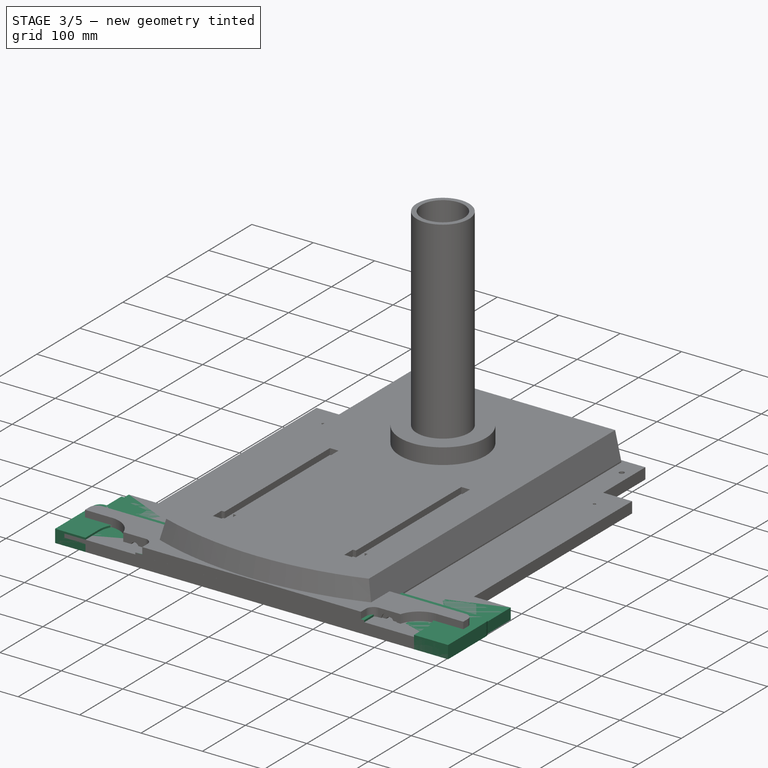
[diagram: stage 3 of 5 — iso view after this stage's code; geometry added in this stage tinted green]
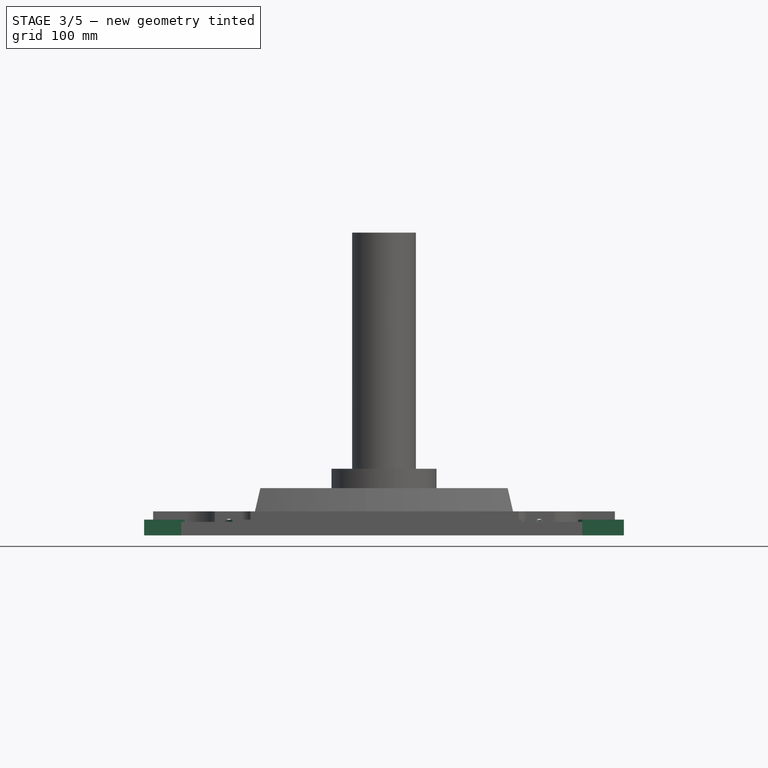
[diagram: stage 3 of 5 — front view after this stage's code; geometry added in this stage tinted green]
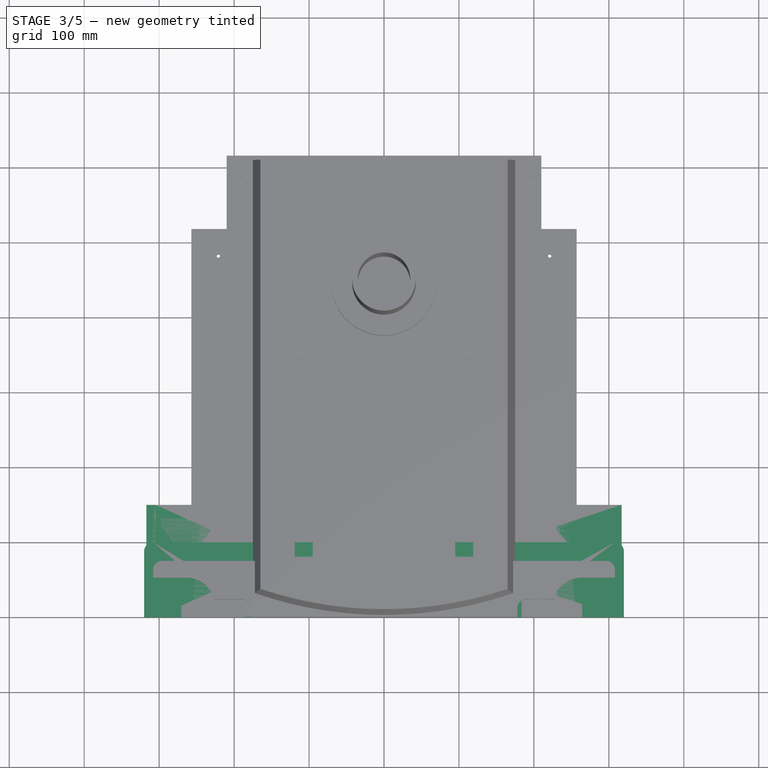
[diagram: stage 3 of 5 — top view after this stage's code; geometry added in this stage tinted green]
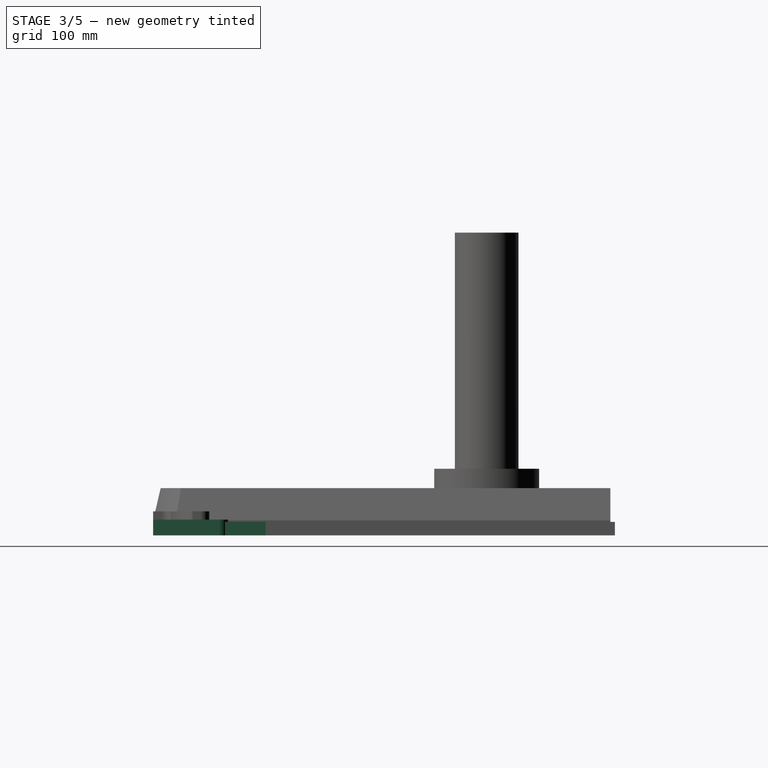
[diagram: stage 3 of 5 — right view after this stage's code; geometry added in this stage tinted green]
FEATURE [Sketcher::SketchObject] Sketch028  label="sk:side_left"
  FullyConstrained = true
  MapMode = 5
  Support = -> [XY_Plane012]
  expr: .Constraints.side_length = Spreadsheet.storage_cabinet_base_depth - (Spreadsheet.ply_18 - Spreadsheet.ply_12)
  expr: Constraints[10] = Spreadsheet.storage_cabinet_base_height
  sketch-geometry (4):
    g0: LineSegment StartX=-317 StartY=150 StartZ=0 EndX=317 EndY=150 EndZ=0
    g1: LineSegment StartX=317 StartY=150 StartZ=0 EndX=317 EndY=0 EndZ=0
    g2: LineSegment StartX=317 StartY=0 StartZ=0 EndX=-317 EndY=0 EndZ=0
    g3: LineSegment StartX=-317 StartY=0 StartZ=0 EndX=-317 EndY=150 EndZ=0
  constraints (11):
    c: Coincident(g0,g1)
    c: Coincident(g1,g2)
    c: Coincident(g2,g3)
    c: Coincident(g3,g0)
    c: Horizontal(g0)
    c: Horizontal(g2)
    c: Vertical(g1)
    c: Vertical(g3)
    c: Symmetric(g2,g1,g-1)
    c: DistanceX(g2,g2) = 634  'side_length'
    c: DistanceY(g3,g3) = 150
FEATURE [PartDesign::Pad] Pad011
  Direction = (0,0,1)
  Length = 18
  Length2 = 10
  Profile = -> Sketch028
  ReferenceAxis = -> Sketch028 [N_Axis]
  Type = 0
  expr: Length = Spreadsheet.ply_18
FEATURE [Sketcher::SketchObject] Sketch029
  FullyConstrained = true
  MapMode = 5
  Placement = pos=(0,0,18) rot=(0,0,1;0rad)
  Support = -> [Pad011]
  expr: Constraints[10] = Spreadsheet.storage_cabinet_base_height
  expr: Constraints[11] = Spreadsheet.ply_18
  expr: Constraints[8] = (Spreadsheet.storage_cabinet_base_depth - (Spreadsheet.ply_18 - Spreadsheet.ply_12)) / 2
  expr: Constraints[9] = Spreadsheet.storage_cabinet_base_depth - (Spreadsheet.ply_18 - Spreadsheet.ply_12)
  sketch-geometry (4):
    g0: LineSegment StartX=-317 StartY=150 StartZ=0 EndX=317 EndY=150 EndZ=0
    g1: LineSegment StartX=317 StartY=150 StartZ=0 EndX=317 EndY=132 EndZ=0
    g2: LineSegment StartX=317 StartY=132 StartZ=0 EndX=-317 EndY=132 EndZ=0
    g3: LineSegment StartX=-317 StartY=132 StartZ=0 EndX=-317 EndY=150 EndZ=0
  constraints (12):
    c: Coincident(g0,g1)
    c: Coincident(g1,g2)
    c: Coincident(g2,g3)
    c: Coincident(g3,g0)
    c: Horizontal(g0)
    c: Horizontal(g2)
    c: Vertical(g1)
    c: Vertical(g3)
    c: DistanceX(g0,g-1) = 317
    c: DistanceX(g0,g0) = 634
    c: DistanceY(g-1,g0) = 150
    c: DistanceY(g3,g3) = 18
FEATURE [PartDesign::Pocket] Pocket017
  BaseFeature = -> Pad011
  Direction = (0,0,-1)
  Length = 12
  Length2 = 5
  Profile = -> Sketch029
  ReferenceAxis = -> Sketch029 [N_Axis]
  Type = 0
  expr: Length = Spreadsheet.ply_12
FEATURE [Sketcher::SketchObject] Sketch030
  FullyConstrained = true
  MapMode = 5
  Placement = pos=(0,0,18) rot=(0,0,1;0rad)
  Support = -> [Pocket017]
  expr: Constraints[10] = Spreadsheet.storage_cabinet_base_height - Spreadsheet.ply_18
  expr: Constraints[11] = Spreadsheet.ply_12
  expr: Constraints[8] = (Spreadsheet.storage_cabinet_base_depth - (Spreadsheet.ply_18 - Spreadsheet.ply_12)) / 2
  sketch-geometry (4):
    g0: LineSegment StartX=-317 StartY=132 StartZ=0 EndX=-305 EndY=132 EndZ=0
    g1: LineSegment StartX=-305 StartY=132 StartZ=0 EndX=-305 EndY=0 EndZ=0
    g2: LineSegment StartX=-305 StartY=0 StartZ=0 EndX=-317 EndY=0 EndZ=0
    g3: LineSegment StartX=-317 StartY=0 StartZ=0 EndX=-317 EndY=132 EndZ=0
  constraints (12):
    c: Coincident(g0,g1)
    c: Coincident(g1,g2)
    c: Coincident(g2,g3)
    c: Coincident(g3,g0)
    c: Horizontal(g0)
    c: Horizontal(g2)
    c: Vertical(g1)
    c: Vertical(g3)
    c: DistanceX(g2,g-1) = 317
    c: DistanceY(g2,g-1) = 0
    c: DistanceY(g-1,g0) = 132
    c: DistanceX(g2,g2) = 12
FEATURE [PartDesign::Pocket] Pocket018
  BaseFeature = -> Pocket017
  Direction = (0,0,-1)
  Length = 6
  Length2 = 5
  Profile = -> Sketch030
  ReferenceAxis = -> Sketch030 [N_Axis]
  Type = 0
  expr: Length = Spreadsheet.ply_6
FEATURE [PartDesign::Body] Body009  label="scb_base_front"
  Group = -> [Sketch026,Pad010,Sketch027,Pocket016,Mirrored007,Sketch031,Pocket019]
  Origin = -> Origin011
  Placement = pos=(0,0,150) rot=(-1,0,0;1.5708rad)
  Tip = -> Pocket019
  expr: .Placement.Base.z = Spreadsheet.storage_cabinet_base_height
FEATURE [Sketcher::SketchObject] Sketch032
  FullyConstrained = true
  MapMode = 5
  Support = -> [XY_Plane013]
  expr: Constraints[10] = Spreadsheet.storage_cabinet_base_height
  expr: Constraints[9] = Spreadsheet.storage_cabinet_base_depth - (Spreadsheet.ply_18 - Spreadsheet.ply_12)
  sketch-geometry (4):
    g0: LineSegment StartX=-317 StartY=150 StartZ=0 EndX=317 EndY=150 EndZ=0
    g1: LineSegment StartX=317 StartY=150 StartZ=0 EndX=317 EndY=0 EndZ=0
    g2: LineSegment StartX=317 StartY=0 StartZ=0 EndX=-317 EndY=0 EndZ=0
    g3: LineSegment StartX=-317 StartY=0 StartZ=0 EndX=-317 EndY=150 EndZ=0
  constraints (11):
    c: Coincident(g0,g1)
    c: Coincident(g1,g2)
    c: Coincident(g2,g3)
    c: Coincident(g3,g0)
    c: Horizontal(g0)
    c: Horizontal(g2)
    c: Vertical(g1)
    c: Vertical(g3)
    c: Symmetric(g2,g1,g-1)
    c: DistanceX(g0,g0) = 634
    c: DistanceY(g3,g3) = 150
FEATURE [PartDesign::Pad] Pad012
  Direction = (0,0,1)
  Length = 18
  Length2 = 10
  Profile = -> Sketch032
  ReferenceAxis = -> Sketch032 [N_Axis]
  Type = 0
  expr: Length = Spreadsheet.ply_18
FEATURE [Sketcher::SketchObject] Sketch033
  FullyConstrained = true
  MapMode = 5
  Placement = pos=(0,0,18) rot=(0,0,1;0rad)
  Support = -> [Pad012]
  expr: Constraints[10] = Spreadsheet.ply_18
  expr: Constraints[9] = Spreadsheet.storage_cabinet_base_depth - (Spreadsheet.ply_18 - Spreadsheet.ply_12)
  sketch-geometry (4):
    g0: LineSegment StartX=-317 StartY=18 StartZ=0 EndX=317 EndY=18 EndZ=0
    g1: LineSegment StartX=317 StartY=18 StartZ=0 EndX=317 EndY=0 EndZ=0
    g2: LineSegment StartX=317 StartY=0 StartZ=0 EndX=-317 EndY=0 EndZ=0
    g3: LineSegment StartX=-317 StartY=0 StartZ=0 EndX=-317 EndY=18 EndZ=0
  constraints (11):
    c: Coincident(g0,g1)
    c: Coincident(g1,g2)
    c: Coincident(g2,g3)
    c: Coincident(g3,g0)
    c: Horizontal(g0)
    c: Horizontal(g2)
    c: Vertical(g1)
    c: Vertical(g3)
    c: Symmetric(g2,g1,g-1)
    c: DistanceX(g2,g2) = 634
    c: DistanceY(g3,g3) = 18
FEATURE [PartDesign::Pocket] Pocket020
  BaseFeature = -> Pad012
  Direction = (0,0,-1)
  Length = 12
  Length2 = 5
  Profile = -> Sketch033
  ReferenceAxis = -> Sketch033 [N_Axis]
  Type = 0
  expr: Length = Spreadsheet.ply_12
FEATURE [Sketcher::SketchObject] Sketch034
  FullyConstrained = true
  MapMode = 5
  Placement = pos=(0,0,18) rot=(0,0,1;0rad)
  Support = -> [Pocket020]
  expr: Constraints[10] = Spreadsheet.storage_cabinet_base_height
  expr: Constraints[11] = Spreadsheet.ply_12
  expr: Constraints[8] = (Spreadsheet.storage_cabinet_base_depth - (Spreadsheet.ply_18 - Spreadsheet.ply_12)) / 2
  expr: Constraints[9] = Spreadsheet.storage_cabinet_base_height
  sketch-geometry (4):
    g0: LineSegment StartX=-317 StartY=150 StartZ=0 EndX=-305 EndY=150 EndZ=0
    g1: LineSegment StartX=-305 StartY=150 StartZ=0 EndX=-305 EndY=0 EndZ=0
    g2: LineSegment StartX=-305 StartY=0 StartZ=0 EndX=-317 EndY=0 EndZ=0
    g3: LineSegment StartX=-317 StartY=0 StartZ=0 EndX=-317 EndY=150 EndZ=0
  constraints (12):
    c: Coincident(g0,g1)
    c: Coincident(g1,g2)
    c: Coincident(g2,g3)
    c: Coincident(g3,g0)
    c: Horizontal(g0)
    c: Horizontal(g2)
    c: Vertical(g1)
    c: Vertical(g3)
    c: DistanceX(g0,g-1) = 317
    c: DistanceY(g-1,g0) = 150
    c: DistanceY(g3,g3) = 150
    c: DistanceX(g0,g0) = 12
FEATURE [PartDesign::Pocket] Pocket021
  BaseFeature = -> Pocket020
  Direction = (0,0,-1)
  Length = 6
  Length2 = 5
  Profile = -> Sketch034
  ReferenceAxis = -> Sketch034 [N_Axis]
  Type = 0
  expr: Length = Spreadsheet.ply_6
FEATURE [PartDesign::Body] Body012  label="scb_base_top"
  Group = -> [Sketch035,Pad013,Sketch036,Pocket022]
  Origin = -> Origin014
  Placement = pos=(0,6,132) rot=(0,0,1;0rad)
  Tip = -> Pocket022
  expr: .Placement.Base.y = Spreadsheet.ply_6
  expr: .Placement.Base.z = Spreadsheet.storage_cabinet_base_height - Spreadsheet.ply_18
FEATURE [Sketcher::SketchObject] Sketch037  label="sk:scb_wheel_blocking"
  FullyConstrained = true
  MapMode = 5
  Support = -> [XY_Plane015]
  expr: .Constraints.scb_wheel_blocking_height = Spreadsheet.storage_cabinet_base_height - 50 mm
  expr: .Constraints.scb_wheel_blocking_length = Spreadsheet.storage_cabinet_base_depth
  expr: Constraints[18] = 2 * Spreadsheet.base_radius
  sketch-geometry (8):
    g0: LineSegment StartX=-308 StartY=100 StartZ=0 EndX=308 EndY=100 EndZ=0
    g1: LineSegment StartX=320 StartY=88 StartZ=0 EndX=320 EndY=0 EndZ=0
    g2: LineSegment StartX=320 StartY=0 StartZ=0 EndX=-320 EndY=0 EndZ=0
    g3: LineSegment StartX=-320 StartY=0 StartZ=0 EndX=-320 EndY=88 EndZ=0
    g4: ArcOfCircle CenterX=-308 CenterY=88 CenterZ=0 NormalX=0 NormalY=0 NormalZ=1 AngleXU=0 Radius=12 StartAngle=1.5708 EndAngle=3.14159
    g5: GeomPoint X=-320 Y=100 Z=0
    g6: ArcOfCircle CenterX=308 CenterY=88 CenterZ=0 NormalX=0 NormalY=0 NormalZ=1 AngleXU=0 Radius=12 StartAngle=-9e-16 EndAngle=1.5708
    g7: GeomPoint X=320 Y=100 Z=0
  constraints (19):
    c: Coincident(g1,g2)
    c: Coincident(g2,g3)
    c: Horizontal(g0)
    c: Horizontal(g2)
    c: Vertical(g1)
    c: Vertical(g3)
    c: Symmetric(g2,g1,g-1)
    c: DistanceX(g2,g2) = 640  'scb_wheel_blocking_length'
    c: DistanceY(g3,g5) = 100  'scb_wheel_blocking_height'
    c: PointOnObject(g5,g3)
    c: PointOnObject(g5,g0)
    c: Tangent(g3,g4) = 1.5708
    c: Tangent(g0,g4) = 1.5708
    c: PointOnObject(g7,g0)
    c: PointOnObject(g7,g1)
    c: Tangent(g0,g6) = 1.5708
    c: Tangent(g1,g6) = 1.5708
    c: Equal(g4,g6)
    c: Radius(g4) = 12
FEATURE [PartDesign::Pad] Pad014
  Direction = (0,0,1)
  Length = 21
  Length2 = 10
  Profile = -> Sketch037
  ReferenceAxis = -> Sketch037 [N_Axis]
  Type = 0
  expr: Length = Spreadsheet.wheel_width + 1 mm
FEATURE [Sketcher::SketchObject] Sketch038
  FullyConstrained = false
  MapMode = 5
  Placement = pos=(0,0,21) rot=(0,0,1;0rad)
  Support = -> [Pad014]
  expr: .Constraints.left = <<sk:side_left_wheel>>.Constraints.wheels_distance_l + 3 mm
  expr: .Constraints.right = <<sk:side_left_wheel>>.Constraints.wheels_distance_l - 3 mm
  expr: Constraints[0] = Spreadsheet.wheel_od + Spreadsheet.base_radius
  expr: Constraints[10] = .Constraints.right - (Spreadsheet.wheel_od + Spreadsheet.base_radius) / 2
  expr: Constraints[11] = <<sk:side_left_wheel>>.Constraints.wheels_distance_h
  expr: Constraints[24] = <<sk:side_left_wheel>>.Constraints.wheels_distance_h
  expr: Constraints[26] = <<sk:side_left_wheel>>.Constraints.wheels_distance_h
  expr: Constraints[2] = <<sk:side_left_wheel>>.Constraints.wheels_distance_h
  expr: Constraints[9] = Spreadsheet.wheel_od + Spreadsheet.base_radius
  sketch-geometry (8):
    g0: ArcOfCircle CenterX=224 CenterY=31.5 CenterZ=0 NormalX=0 NormalY=0 NormalZ=1 AngleXU=0 Radius=40.5 StartAngle=0 EndAngle=3.14159
    g1: LineSegment StartX=264.5 StartY=31.5 StartZ=0 EndX=264.5 EndY=-49.5 EndZ=0
    g2: LineSegment StartX=264.5 StartY=-49.5 StartZ=0 EndX=183.5 EndY=-49.5 EndZ=0
    g3: LineSegment StartX=183.5 StartY=-49.5 StartZ=0 EndX=183.5 EndY=31.5 EndZ=0
    g4: ArcOfCircle CenterX=-230 CenterY=31.5 CenterZ=0 NormalX=0 NormalY=0 NormalZ=1 AngleXU=0 Radius=40.5 StartAngle=1.49284e-06 EndAngle=3.14159
    g5: LineSegment StartX=-189.5 StartY=31.5001 StartZ=0 EndX=-189.5 EndY=-49.4999 EndZ=0
    g6: LineSegment StartX=-189.5 StartY=-49.4999 StartZ=0 EndX=-270.5 EndY=-49.4999 EndZ=0
    g7: LineSegment StartX=-270.5 StartY=-49.4999 StartZ=0 EndX=-270.5 EndY=31.5001 EndZ=0
  constraints (27):
    c: Diameter(g0) = 81
    c: DistanceX(g-1,g0) = 224  'right'
    c: DistanceY(g-1,g0) = 31.5
    c: Coincident(g1,g2)
    c: Coincident(g2,g3)
    c: Horizontal(g2)
    c: Vertical(g1)
    c: Vertical(g3)
    c: Equal(g2,g3)
    c: DistanceX(g3,g1) = 81
    c: DistanceX(g-1,g3) = 183.5
    c: DistanceY(g-1,g3) = 31.5
    c: Equal(g3,g1)
    c: Equal(g0,g4) = 81
    c: Coincident(g5,g6)
    c: Coincident(g6,g7)
    c: Horizontal(g6)
    c: Vertical(g5)
    c: Vertical(g7)
    c: Equal(g6,g7)
    c: DistanceX(g7,g5) = 81
    c: Equal(g7,g5)
    c: DistanceX(g4,g-1) = 230  'left'
    c: Coincident(g5,g4)
    c: DistanceY(g-1,g4) = 31.5
    c: Coincident(g4,g7)
    c: DistanceY(g-1,g0) = 31.5
FEATURE [Sketcher::SketchObject] Sketch039  label="sk:side_left_wheel"
  FullyConstrained = true
  MapMode = 5
  Placement = pos=(0,0,0) rot=(1,0,0;3.14159rad)
  Support = -> [Pocket018]
  expr: .Constraints.wheels_distance_h = Spreadsheet.wheel_od / 2 - Spreadsheet.ply_6
  expr: .Constraints.wheels_distance_l = <<sk:side_left>>.Constraints.side_length / 2 - 2 * Spreadsheet.wheel_distance_l - 3 mm
  expr: Constraints[0] = Spreadsheet.wheel_id
  sketch-geometry (1):
    g0: Circle CenterX=-227 CenterY=-31.5 CenterZ=0 NormalX=0 NormalY=0 NormalZ=1 AngleXU=0 Radius=4
  constraints (3):
    c: Diameter(g0) = 8
    c: DistanceX(g0,g-1) = 227  'wheels_distance_l'
    c: DistanceY(g0,g-1) = 31.5  'wheels_distance_h'
FEATURE [PartDesign::Pocket] Pocket023
  BaseFeature = -> Pocket018
  Direction = (0,0,1)
  Length = 18
  Length2 = 5
  Profile = -> Sketch039
  ReferenceAxis = -> Sketch039 [N_Axis]
  Type = 0
  expr: Length = Spreadsheet.ply_18
FEATURE [Sketcher::SketchObject] Sketch040
  FullyConstrained = true
  MapMode = 5
  Placement = pos=(0,0,0) rot=(1,0,0;3.14159rad)
  Support = -> [Pocket021]
  expr: Constraints[0] = <<sk:side_left_wheel>>.Constraints.wheels_distance_l
  expr: Constraints[1] = -<<sk:side_left_wheel>>.Constraints.wheels_distance_h + 150 mm
  expr: Constraints[2] = Spreadsheet.wheel_id
  sketch-geometry (1):
    g0: Circle CenterX=-227 CenterY=-118.5 CenterZ=0 NormalX=0 NormalY=0 NormalZ=1 AngleXU=0 Radius=4
  constraints (3):
    c: DistanceX(g0,g-1) = 227
    c: DistanceY(g0,g-1) = 118.5
    c: Diameter(g0) = 8
FEATURE [PartDesign::Pocket] Pocket024
  BaseFeature = -> Pocket021
  Direction = (0,0,1)
  Length = 18
  Length2 = 5
  Profile = -> Sketch040
  ReferenceAxis = -> Sketch040 [N_Axis]
  Type = 0
  expr: Length = Spreadsheet.ply_18
FEATURE [PartDesign::Mirrored] Mirrored009
  BaseFeature = -> Pocket024
  MirrorPlane = -> Sketch040 [V_Axis]
  Originals = -> [Pocket024]
FEATURE [PartDesign::Body] Body011  label="scb_side_right"
  Group = -> [Sketch032,Pad012,Sketch033,Pocket020,Sketch034,Pocket021,Sketch040,Pocket024,Mirrored009]
  Origin = -> Origin013
  Placement = pos=(263,323,150) rot=(0.57735,0.57735,-0.57735;4.18879rad)
  Tip = -> Mirrored009
  expr: .Placement.Base.x = Spreadsheet.storage_cabinet_base_width / 2
  expr: .Placement.Base.y = (Spreadsheet.storage_cabinet_base_depth + Spreadsheet.ply_18 - Spreadsheet.ply_12) / 2
  expr: .Placement.Base.z = Spreadsheet.storage_cabinet_base_height
FEATURE [PartDesign::Pocket] Pocket025
  BaseFeature = -> Pad014
  Direction = (0,0,-1)
  Length = 21
  Length2 = 5
  Profile = -> Sketch038
  ReferenceAxis = -> Sketch038 [N_Axis]
  Type = 0
  expr: Length = Spreadsheet.wheel_width + 1 mm
FEATURE [PartDesign::Body] Body013  label="scb_wheel_blocking_left"
  Group = -> [Sketch037,Pad014,Sketch038,Pocket025]
  Origin = -> Origin015
  Placement = pos=(-263,320,0) rot=(0.57735,-0.57735,-0.57735;2.0944rad)
  Tip = -> Pocket025
  expr: .Placement.Base.x = -(Spreadsheet.storage_cabinet_base_width / 2)
  expr: .Placement.Base.y = Spreadsheet.storage_cabinet_base_depth / 2
FEATURE [Sketcher::SketchObject] Sketch041
  FullyConstrained = true
  MapMode = 5
  Support = -> [XY_Plane016]
  expr: Constraints[18] = 2 * Spreadsheet.base_radius
  expr: Constraints[7] = <<sk:scb_wheel_blocking>>.Constraints.scb_wheel_blocking_length
  expr: Constraints[8] = <<sk:scb_wheel_blocking>>.Constraints.scb_wheel_blocking_height
  sketch-geometry (8):
    g0: LineSegment StartX=-308 StartY=100 StartZ=0 EndX=308 EndY=100 EndZ=0
    g1: LineSegment StartX=320 StartY=88 StartZ=0 EndX=320 EndY=0 EndZ=0
    g2: LineSegment StartX=320 StartY=0 StartZ=0 EndX=-320 EndY=0 EndZ=0
    g3: LineSegment StartX=-320 StartY=0 StartZ=0 EndX=-320 EndY=88 EndZ=0
    g4: ArcOfCircle CenterX=-308 CenterY=88 CenterZ=0 NormalX=0 NormalY=0 NormalZ=1 AngleXU=0 Radius=12 StartAngle=1.5708 EndAngle=3.14159
    g5: GeomPoint X=-320 Y=100 Z=0
    g6: ArcOfCircle CenterX=308 CenterY=88 CenterZ=0 NormalX=0 NormalY=0 NormalZ=1 AngleXU=0 Radius=12 StartAngle=0 EndAngle=1.5708
    g7: GeomPoint X=320 Y=100 Z=0
  constraints (19):
    c: Coincident(g1,g2)
    c: Coincident(g2,g3)
    c: Horizontal(g0)
    c: Horizontal(g2)
    c: Vertical(g1)
    c: Vertical(g3)
    c: Symmetric(g2,g1,g-1)
    c: DistanceX(g2,g2) = 640
    c: DistanceY(g3,g5) = 100
    c: PointOnObject(g5,g3)
    c: PointOnObject(g5,g0)
    c: Tangent(g3,g4) = 1.5708
    c: Tangent(g0,g4) = 1.5708
    c: PointOnObject(g7,g0)
    c: PointOnObject(g7,g1)
    c: Tangent(g0,g6) = 1.5708
    c: Tangent(g1,g6) = 1.5708
    c: Equal(g4,g6)
    c: Radius(g4) = 12
FEATURE [PartDesign::Pad] Pad015
  Direction = (0,0,1)
  Length = 12
  Length2 = 10
  Profile = -> Sketch041
  ReferenceAxis = -> Sketch041 [N_Axis]
  Type = 0
  expr: Length = Spreadsheet.ply_12
FEATURE [Sketcher::SketchObject] Sketch042
  FullyConstrained = true
  MapMode = 5
  Placement = pos=(0,0,12) rot=(0,0,1;0rad)
  Support = -> [Pad015]
  expr: Constraints[0] = <<sk:side_left_wheel>>.Constraints.wheels_distance_l - 3 mm
  expr: Constraints[1] = <<sk:side_left_wheel>>.Constraints.wheels_distance_h
  expr: Constraints[2] = Spreadsheet.wheel_id
  expr: Constraints[3] = <<sk:side_left_wheel>>.Constraints.wheels_distance_h
  expr: Constraints[4] = <<sk:side_left_wheel>>.Constraints.wheels_distance_l + 3 mm
  sketch-geometry (2):
    g0: Circle CenterX=224 CenterY=31.5 CenterZ=0 NormalX=0 NormalY=0 NormalZ=1 AngleXU=0 Radius=4
    g1: Circle CenterX=-230 CenterY=31.5 CenterZ=0 NormalX=0 NormalY=0 NormalZ=1 AngleXU=0 Radius=4
  constraints (6):
    c: DistanceX(g-1,g0) = 224
    c: DistanceY(g-1,g0) = 31.5
    c: Diameter(g0) = 8
    c: DistanceY(g-1,g1) = 31.5
    c: DistanceX(g1,g-1) = 230
    c: Equal(g0,g1)
FEATURE [PartDesign::Pocket] Pocket026
  BaseFeature = -> Pad015
  Direction = (0,0,-1)
  Length = 12
  Length2 = 5
  Profile = -> Sketch042
  ReferenceAxis = -> Sketch042 [N_Axis]
  Type = 0
  expr: Length = Spreadsheet.ply_12
FEATURE [PartDesign::Body] Body014  label="scb_skirt"
  Group = -> [Sketch041,Pad015,Sketch042,Pocket026]
  Origin = -> Origin016
  Placement = pos=(-284,320,0) rot=(0.57735,-0.57735,-0.57735;2.0944rad)
  Tip = -> Pocket026
  expr: .Placement.Base.x = -(Spreadsheet.storage_cabinet_base_width / 2 + Spreadsheet.wheel_width + 1 mm)
  expr: .Placement.Base.y = Spreadsheet.storage_cabinet_base_depth / 2
FEATURE [PartDesign::Mirrored] Mirrored008
  BaseFeature = -> Pocket023
  MirrorPlane = -> Sketch039 [V_Axis]
  Originals = -> [Pocket023]
FEATURE [PartDesign::Body] Body010  label="scb_side_left"
  Group = -> [Sketch028,Pad011,Sketch029,Pocket017,Sketch030,Pocket018,Sketch039,Pocket023,Mirrored008]
  Origin = -> Origin012
  Placement = pos=(-263,323,0) rot=(0.57735,0.57735,0.57735;2.0944rad)
  Tip = -> Mirrored008
  expr: .Placement.Base.x = -Spreadsheet.storage_cabinet_base_width / 2
  expr: .Placement.Base.y = (Spreadsheet.storage_cabinet_base_depth + Spreadsheet.ply_18 - Spreadsheet.ply_12) / 2
FEATURE [App::Part] Part001  label="storage_cabinet_base"
  Group = -> [Body009,Body010,Body011,Body012,Body013,Body014]
  Origin = -> Origin010
  Placement = pos=(0,-18,0) rot=(0,0,1;0rad)
FEATURE [Sketcher::SketchObject] Sketch043  label="sc:bottom"
  FullyConstrained = true
  MapMode = 5
  Support = -> [XY_Plane018]
  expr: .Constraints.bottom_depth = Spreadsheet.storage_cabinet_base_depth - Spreadsheet.steel_column_depth
  expr: .Constraints.bottom_width = Spreadsheet.storage_cabinet_base_width - 2 * (Spreadsheet.ply_18 - Spreadsheet.ply_12)
  sketch-geometry (4):
    g0: LineSegment StartX=-257 StartY=410 StartZ=0 EndX=257 EndY=410 EndZ=0
    g1: LineSegment StartX=257 StartY=410 StartZ=0 EndX=257 EndY=0 EndZ=0
    g2: LineSegment StartX=257 StartY=0 StartZ=0 EndX=-257 EndY=0 EndZ=0
    g3: LineSegment StartX=-257 StartY=0 StartZ=0 EndX=-257 EndY=410 EndZ=0
  constraints (11):
    c: Coincident(g0,g1)
    c: Coincident(g1,g2)
    c: Coincident(g2,g3)
    c: Coincident(g3,g0)
    c: Horizontal(g0)
    c: Horizontal(g2)
    c: Vertical(g1)
    c: Vertical(g3)
    c: Symmetric(g2,g1,g-1)
    c: DistanceX(g2,g2) = 514  'bottom_width'
    c: DistanceY(g3,g3) = 410  'bottom_depth'
FEATURE [PartDesign::Pad] Pad016
  Direction = (0,0,1)
  Length = 18
  Length2 = 10
  Profile = -> Sketch043
  ReferenceAxis = -> Sketch043 [N_Axis]
  Type = 0
  expr: Length = Spreadsheet.ply_18
FEATURE [Sketcher::SketchObject] Sketch044
  FullyConstrained = true
  MapMode = 5
  Placement = pos=(0,0,18) rot=(0,0,1;0rad)
  Support = -> [Pad016]
  expr: Constraints[10] = <<sc:bottom>>.Constraints.bottom_depth
  expr: Constraints[11] = <<sc:bottom>>.Constraints.bottom_width / 2
  expr: Constraints[8] = <<sc:bottom>>.Constraints.bottom_width
  expr: Constraints[9] = Spreadsheet.ply_18
  sketch-geometry (4):
    g0: LineSegment StartX=-257 StartY=410 StartZ=0 EndX=257 EndY=410 EndZ=0
    g1: LineSegment StartX=257 StartY=410 StartZ=0 EndX=257 EndY=392 EndZ=0
    g2: LineSegment StartX=257 StartY=392 StartZ=0 EndX=-257 EndY=392 EndZ=0
    g3: LineSegment StartX=-257 StartY=392 StartZ=0 EndX=-257 EndY=410 EndZ=0
  constraints (12):
    c: Coincident(g0,g1)
    c: Coincident(g1,g2)
    c: Coincident(g2,g3)
    c: Coincident(g3,g0)
    c: Horizontal(g0)
    c: Horizontal(g2)
    c: Vertical(g1)
    c: Vertical(g3)
    c: DistanceX(g0,g0) = 514
    c: DistanceY(g2,g0) = 18
    c: DistanceY(g-1,g0) = 410
    c: DistanceX(g0,g-1) = 257
FEATURE [PartDesign::Pocket] Pocket027
  BaseFeature = -> Pad016
  Direction = (0,0,-1)
  Length = 12
  Length2 = 5
  Profile = -> Sketch044
  ReferenceAxis = -> Sketch044 [N_Axis]
  Type = 0
  expr: Length = Spreadsheet.ply_12
FEATURE [Sketcher::SketchObject] Sketch045
  FullyConstrained = true
  MapMode = 5
  Placement = pos=(0,0,18) rot=(0,0,1;0rad)
  Support = -> [Pocket027]
  expr: Constraints[1] = <<sc:bottom>>.Constraints.bottom_width / 2 - 6 * Spreadsheet.ply_6
  expr: Constraints[2] = <<sc:bottom>>.Constraints.bottom_width / 2 - 6 * Spreadsheet.ply_6
  expr: Constraints[3] = 4 * Spreadsheet.ply_6
  expr: Constraints[4] = <<sc:bottom>>.Constraints.bottom_depth - Spreadsheet.ply_18 - 4 * Spreadsheet.ply_6
  expr: Constraints[5] = Spreadsheet.mounting_screws_dia
  sketch-geometry (2):
    g0: Circle CenterX=-221 CenterY=24 CenterZ=0 NormalX=0 NormalY=0 NormalZ=1 AngleXU=0 Radius=2.25
    g1: Circle CenterX=-221 CenterY=368 CenterZ=0 NormalX=0 NormalY=0 NormalZ=1 AngleXU=0 Radius=2.25
  constraints (6):
    c: Equal(g0,g1)
    c: DistanceX(g0,g-1) = 221
    c: DistanceX(g1,g-1) = 221
    c: DistanceY(g-1,g0) = 24
    c: DistanceY(g-1,g1) = 368
    c: Diameter(g0) = 4.5
FEATURE [PartDesign::Pocket] Pocket028
  BaseFeature = -> Pocket027
  Direction = (0,0,-1)
  Length = 18
  Length2 = 5
  Profile = -> Sketch045
  ReferenceAxis = -> Sketch045 [N_Axis]
  Type = 0
  expr: Length = Spreadsheet.ply_18
FEATURE [PartDesign::Mirrored] Mirrored010
  BaseFeature = -> Pocket028
  MirrorPlane = -> Sketch045 [V_Axis]
  Originals = -> [Pocket028]
FEATURE [PartDesign::Body] Body015  label="sc_bottom"
  Group = -> [Sketch043,Pad016,Sketch044,Pocket027,Sketch045,Pocket028,Mirrored010]
  Origin = -> Origin018
  Tip = -> Mirrored010
FEATURE [Sketcher::SketchObject] Sketch046
  FullyConstrained = true
  MapMode = 5
  Support = -> [XY_Plane019]
  expr: Constraints[10] = Spreadsheet.storage_cabinet_height
  expr: Constraints[9] = <<sc:bottom>>.Constraints.bottom_depth
  sketch-geometry (4):
    g0: LineSegment StartX=-205 StartY=530 StartZ=0 EndX=205 EndY=530 EndZ=0
    g1: LineSegment StartX=205 StartY=530 StartZ=0 EndX=205 EndY=0 EndZ=0
    g2: LineSegment StartX=205 StartY=0 StartZ=0 EndX=-205 EndY=0 EndZ=0
    g3: LineSegment StartX=-205 StartY=0 StartZ=0 EndX=-205 EndY=530 EndZ=0
  constraints (11):
    c: Coincident(g0,g1)
    c: Coincident(g1,g2)
    c: Coincident(g2,g3)
    c: Coincident(g3,g0)
    c: Horizontal(g0)
    c: Horizontal(g2)
    c: Vertical(g1)
    c: Vertical(g3)
    c: Symmetric(g2,g1,g-1)
    c: DistanceX(g2,g2) = 410
    c: DistanceY(g3,g3) = 530
FEATURE [PartDesign::Pad] Pad017
  Direction = (0,0,1)
  Length = 18
  Length2 = 10
  Profile = -> Sketch046
  ReferenceAxis = -> Sketch046 [N_Axis]
  Type = 0
  expr: Length = Spreadsheet.ply_18
FEATURE [Sketcher::SketchObject] Sketch047
  FullyConstrained = true
  MapMode = 5
  Placement = pos=(0,0,18) rot=(0,0,1;0rad)
  Support = -> [Pad017]
  expr: Constraints[10] = Spreadsheet.ply_18
  expr: Constraints[19] = <<sc:bottom>>.Constraints.bottom_depth
  expr: Constraints[20] = <<sc:bottom>>.Constraints.bottom_depth / 2
  expr: Constraints[21] = Spreadsheet.storage_cabinet_height
  expr: Constraints[9] = <<sc:bottom>>.Constraints.bottom_depth
  sketch-geometry (8):
    g0: LineSegment StartX=-205 StartY=18 StartZ=0 EndX=205 EndY=18 EndZ=0
    g1: LineSegment StartX=205 StartY=18 StartZ=0 EndX=205 EndY=0 EndZ=0
    g2: LineSegment StartX=205 StartY=0 StartZ=0 EndX=-205 EndY=0 EndZ=0
    g3: LineSegment StartX=-205 StartY=0 StartZ=0 EndX=-205 EndY=18 EndZ=0
    g4: LineSegment StartX=-205 StartY=530 StartZ=0 EndX=205 EndY=530 EndZ=0
    g5: LineSegment StartX=205 StartY=530 StartZ=0 EndX=205 EndY=512 EndZ=0
    g6: LineSegment StartX=205 StartY=512 StartZ=0 EndX=-205 EndY=512 EndZ=0
    g7: LineSegment StartX=-205 StartY=512 StartZ=0 EndX=-205 EndY=530 EndZ=0
  constraints (23):
    c: Coincident(g0,g1)
    c: Coincident(g1,g2)
    c: Coincident(g2,g3)
    c: Coincident(g3,g0)
    c: Horizontal(g0)
    c: Horizontal(g2)
    c: Vertical(g1)
    c: Vertical(g3)
    c: Symmetric(g2,g1,g-1)
    c: DistanceX(g2,g1) = 410
    c: DistanceY(g3,g3) = 18
    c: Coincident(g4,g5)
    c: Coincident(g5,g6)
    c: Coincident(g6,g7)
    c: Coincident(g7,g4)
    c: Horizontal(g4)
    c: Horizontal(g6)
    c: Vertical(g5)
    c: Vertical(g7)
    c: DistanceX(g4,g4) = 410
    c: DistanceX(g4,g-1) = 205
    c: DistanceY(g-1,g4) = 530
    c: Equal(g7,g3)
FEATURE [PartDesign::Pocket] Pocket029
  BaseFeature = -> Pad017
  Direction = (0,0,-1)
  Length = 12
  Length2 = 5
  Profile = -> Sketch047
  ReferenceAxis = -> Sketch047 [N_Axis]
  Type = 0
  expr: Length = Spreadsheet.ply_12
FEATURE [Sketcher::SketchObject] Sketch048
  FullyConstrained = true
  MapMode = 5
  Placement = pos=(0,0,18) rot=(0,0,1;0rad)
  Support = -> [Pocket029]
  expr: Constraints[11] = Spreadsheet.storage_cabinet_height
  expr: Constraints[8] = Spreadsheet.ply_18
  expr: Constraints[9] = <<sc:bottom>>.Constraints.bottom_depth / 2
  sketch-geometry (4):
    g0: LineSegment StartX=-205 StartY=530 StartZ=0 EndX=-187 EndY=530 EndZ=0
    g1: LineSegment StartX=-187 StartY=530 StartZ=0 EndX=-187 EndY=0 EndZ=0
    g2: LineSegment StartX=-187 StartY=0 StartZ=0 EndX=-205 EndY=0 EndZ=0
    g3: LineSegment StartX=-205 StartY=0 StartZ=0 EndX=-205 EndY=530 EndZ=0
  constraints (12):
    c: Coincident(g0,g1)
    c: Coincident(g1,g2)
    c: Coincident(g2,g3)
    c: Coincident(g3,g0)
    c: Horizontal(g0)
    c: Horizontal(g2)
    c: Vertical(g1)
    c: Vertical(g3)
    c: DistanceX(g2,g2) = 18
    c: DistanceX(g2,g-1) = 205
    c: DistanceY(g2,g-1) = 0
    c: DistanceY(g3,g3) = 530
FEATURE [PartDesign::Pocket] Pocket030
  BaseFeature = -> Pocket029
  Direction = (0,0,-1)
  Length = 12
  Length2 = 5
  Profile = -> Sketch048
  ReferenceAxis = -> Sketch048 [N_Axis]
  Type = 0
  expr: Length = Spreadsheet.ply_12
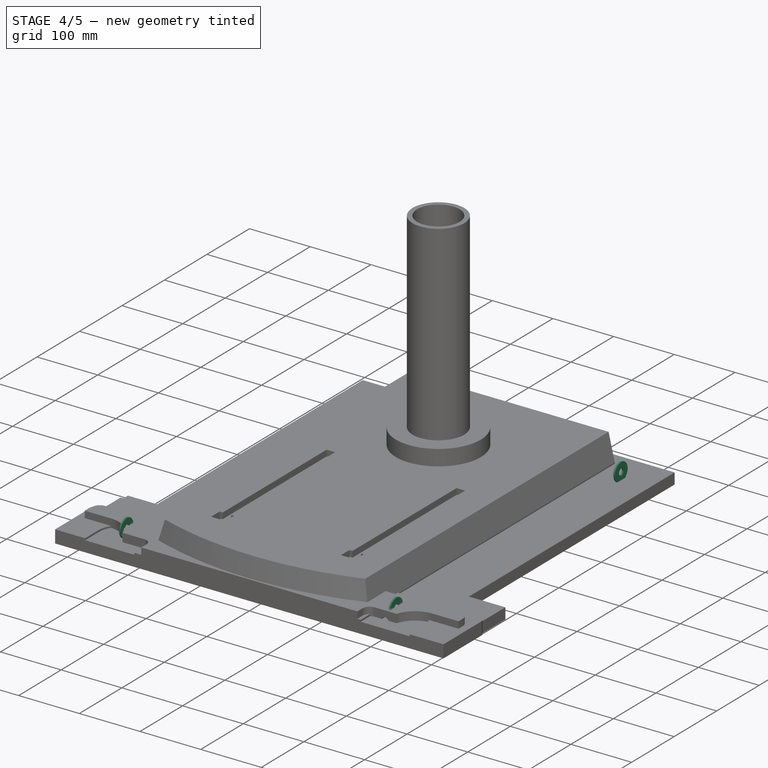
[diagram: stage 4 of 5 — iso view after this stage's code; geometry added in this stage tinted green]
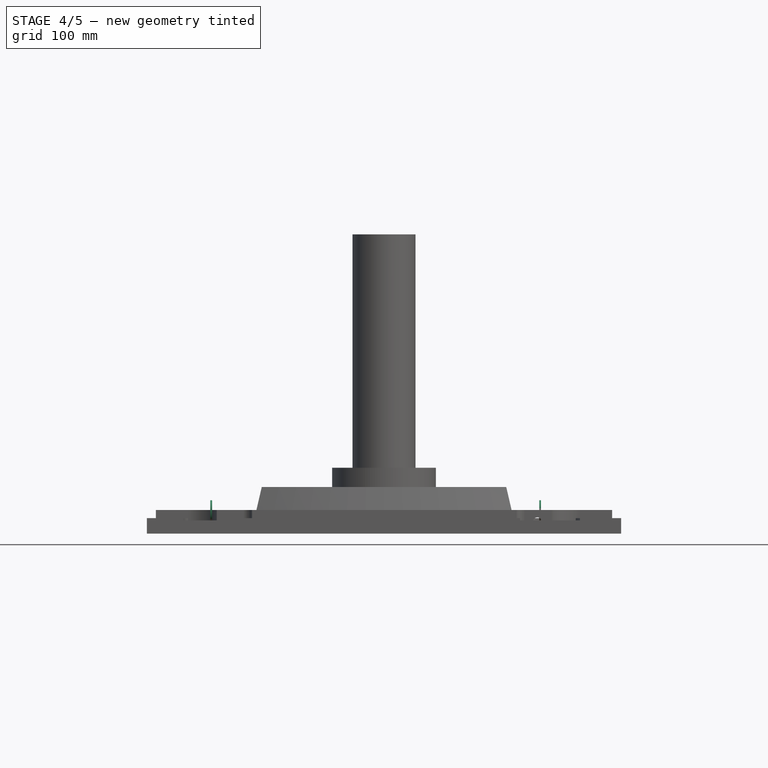
[diagram: stage 4 of 5 — front view after this stage's code; geometry added in this stage tinted green]
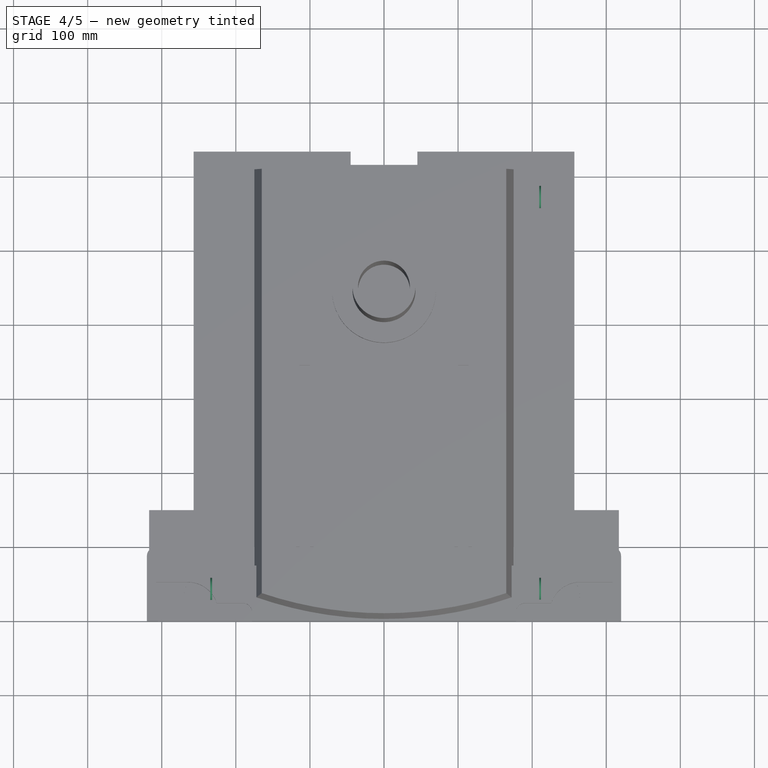
[diagram: stage 4 of 5 — top view after this stage's code; geometry added in this stage tinted green]
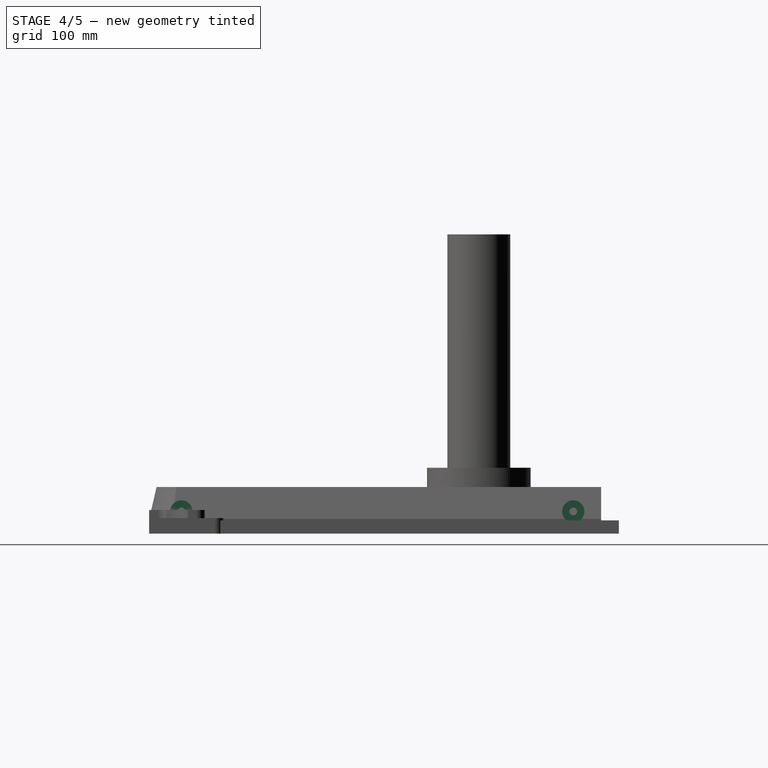
[diagram: stage 4 of 5 — right view after this stage's code; geometry added in this stage tinted green]
FEATURE [Sketcher::SketchObject] Sketch005
  FullyConstrained = true
  MapMode = 5
  Support = -> [XY_Plane004]
  expr: Constraints[2] = Spreadsheet.wheel_id
  expr: Constraints[3] = Spreadsheet.wheel_od
  sketch-geometry (2):
    g0: Circle CenterX=0 CenterY=0 CenterZ=0 NormalX=0 NormalY=0 NormalZ=1 AngleXU=0 Radius=37.5
    g1: Circle CenterX=0 CenterY=0 CenterZ=0 NormalX=0 NormalY=0 NormalZ=1 AngleXU=0 Radius=4
  constraints (4):
    c: Coincident(g1,g-1)
    c: Coincident(g0,g1)
    c: Diameter(g1) = 8
    c: Diameter(g0) = 75
FEATURE [Sketcher::SketchObject] Sketch006
  FullyConstrained = true
  MapMode = 5
  Support = -> [XY_Plane005]
  expr: Constraints[2] = Spreadsheet.wheel_id
  expr: Constraints[3] = Spreadsheet.wheel_od
  sketch-geometry (2):
    g0: Circle CenterX=0 CenterY=0 CenterZ=0 NormalX=0 NormalY=0 NormalZ=1 AngleXU=0 Radius=37.5
    g1: Circle CenterX=0 CenterY=0 CenterZ=0 NormalX=0 NormalY=0 NormalZ=1 AngleXU=0 Radius=4
  constraints (4):
    c: Coincident(g1,g-1)
    c: Coincident(g0,g1)
    c: Diameter(g1) = 8
    c: Diameter(g0) = 75
FEATURE [PartDesign::Pad] Pad004
  Direction = (0,0,1)
  Length = 20
  Length2 = 10
  Profile = -> Sketch006
  ReferenceAxis = -> Sketch006 [N_Axis]
  Type = 0
  expr: Length = Spreadsheet.wheel_width
FEATURE [PartDesign::Body] Body004  label="wheel001"
  Group = -> [Sketch006,Pad004]
  Origin = -> Origin005
  Placement = pos=(-212,572.5,30) rot=(0,-1,0;1.5708rad)
  Tip = -> Pad004
  expr: .Placement.Base.x = -(Spreadsheet.drill_press_iron_base_width / 2 + Spreadsheet.cleat_depth + 2 mm)
  expr: .Placement.Base.y = Spreadsheet.drill_press_iron_base_depth - Spreadsheet.wheel_distance_l
  expr: .Placement.Base.z = Spreadsheet.wheel_distance_h + Spreadsheet.ply_18
FEATURE [Sketcher::SketchObject] Sketch007
  FullyConstrained = true
  MapMode = 5
  Support = -> [XY_Plane006]
  expr: Constraints[2] = Spreadsheet.wheel_id
  expr: Constraints[3] = Spreadsheet.wheel_od
  sketch-geometry (2):
    g0: Circle CenterX=0 CenterY=0 CenterZ=0 NormalX=0 NormalY=0 NormalZ=1 AngleXU=0 Radius=37.5
    g1: Circle CenterX=0 CenterY=0 CenterZ=0 NormalX=0 NormalY=0 NormalZ=1 AngleXU=0 Radius=4
  constraints (4):
    c: Coincident(g1,g-1)
    c: Coincident(g0,g1)
    c: Diameter(g1) = 8
    c: Diameter(g0) = 75
FEATURE [PartDesign::Pad] Pad005
  Direction = (0,0,1)
  Length = 20
  Length2 = 10
  Profile = -> Sketch007
  ReferenceAxis = -> Sketch007 [N_Axis]
  Type = 0
  expr: Length = Spreadsheet.wheel_width
FEATURE [PartDesign::Body] Body005  label="wheel002"
  Group = -> [Sketch007,Pad005]
  Origin = -> Origin006
  Placement = pos=(212,43.5,30) rot=(0,1,0;1.5708rad)
  Tip = -> Pad005
  expr: .Placement.Base.x = Spreadsheet.drill_press_iron_base_width / 2 + Spreadsheet.cleat_depth + 2 mm
  expr: .Placement.Base.y = Spreadsheet.wheel_distance_l
  expr: .Placement.Base.z = Spreadsheet.wheel_distance_h + Spreadsheet.ply_18
FEATURE [Sketcher::SketchObject] Sketch008
  FullyConstrained = true
  MapMode = 5
  Support = -> [XY_Plane007]
  expr: Constraints[2] = Spreadsheet.wheel_id
  expr: Constraints[3] = Spreadsheet.wheel_od
  sketch-geometry (2):
    g0: Circle CenterX=0 CenterY=0 CenterZ=0 NormalX=0 NormalY=0 NormalZ=1 AngleXU=0 Radius=37.5
    g1: Circle CenterX=0 CenterY=0 CenterZ=0 NormalX=0 NormalY=0 NormalZ=1 AngleXU=0 Radius=4
  constraints (4):
    c: Coincident(g1,g-1)
    c: Coincident(g0,g1)
    c: Diameter(g1) = 8
    c: Diameter(g0) = 75
FEATURE [PartDesign::Pad] Pad006
  Direction = (0,0,1)
  Length = 20
  Length2 = 10
  Profile = -> Sketch008
  ReferenceAxis = -> Sketch008 [N_Axis]
  Type = 0
  expr: Length = Spreadsheet.wheel_width
FEATURE [PartDesign::Body] Body008  label="cleat_right"
  Group = -> [Sketch016,Pad008,Sketch017,Pocket008,Mirrored003,Sketch018,Pocket009,Sketch019,Pocket010,LinearPattern003]
  Origin = -> Origin009
  Placement = pos=(178,308,18) rot=(0.57735,0.57735,0.57735;2.0944rad)
  Tip = -> LinearPattern003
  expr: .Placement.Base.x = Spreadsheet.drill_press_iron_base_width / 2
  expr: .Placement.Base.y = Spreadsheet.drill_press_iron_base_depth / 2
  expr: .Placement.Base.z = Spreadsheet.ply_18
FEATURE [Sketcher::SketchObject] Sketch020
  FullyConstrained = true
  MapMode = 5
  Support = -> [XY_Plane008]
  expr: Constraints[17] = 2 * Spreadsheet.base_radius
  expr: Constraints[7] = Spreadsheet.drill_press_iron_base_depth
  expr: Constraints[8] = Spreadsheet.drill_press_iron_base_height
  sketch-geometry (8):
    g0: LineSegment StartX=-296 StartY=75 StartZ=0 EndX=296 EndY=75 EndZ=0
    g1: LineSegment StartX=308 StartY=63 StartZ=0 EndX=308 EndY=0 EndZ=0
    g2: LineSegment StartX=308 StartY=0 StartZ=0 EndX=-308 EndY=0 EndZ=0
    g3: LineSegment StartX=-308 StartY=0 StartZ=0 EndX=-308 EndY=63 EndZ=0
    g4: ArcOfCircle CenterX=-296 CenterY=63 CenterZ=0 NormalX=0 NormalY=0 NormalZ=1 AngleXU=0 Radius=12 StartAngle=1.5708 EndAngle=3.14159
    g5: GeomPoint X=-308 Y=75 Z=0
    g6: ArcOfCircle CenterX=296 CenterY=63 CenterZ=0 NormalX=0 NormalY=0 NormalZ=1 AngleXU=0 Radius=12 StartAngle=0 EndAngle=1.5708
    g7: GeomPoint X=308 Y=75 Z=0
  constraints (19):
    c: Coincident(g1,g2)
    c: Coincident(g2,g3)
    c: Horizontal(g0)
    c: Horizontal(g2)
    c: Vertical(g1)
    c: Vertical(g3)
    c: Symmetric(g2,g1,g-1)
    c: DistanceX(g2,g1) = 616
    c: DistanceY(g3,g5) = 75
    c: PointOnObject(g5,g3)
    c: PointOnObject(g5,g0)
    c: Tangent(g3,g4) = 1.5708
    c: Tangent(g0,g4) = 1.5708
    c: PointOnObject(g7,g0)
    c: PointOnObject(g7,g1)
    c: Tangent(g0,g6) = 1.5708
    c: Tangent(g1,g6) = 1.5708
    c: Radius(g4) = 12
    c: Equal(g4,g6)
FEATURE [PartDesign::Pad] Pad009
  Direction = (0,0,1)
  Length = 32
  Length2 = 10
  Profile = -> Sketch020
  ReferenceAxis = -> Sketch020 [N_Axis]
  Type = 0
  expr: Length = Spreadsheet.cleat_depth
FEATURE [Sketcher::SketchObject] Sketch021
  FullyConstrained = true
  MapMode = 5
  Placement = pos=(0,0,32) rot=(0,0,1;0rad)
  Support = -> [Pad009]
  expr: Constraints[14] = 2 * Spreadsheet.base_radius
  expr: Constraints[9] = Spreadsheet.drill_press_iron_base_depth / 2
  sketch-geometry (6):
    g0: LineSegment StartX=-308 StartY=24 StartZ=0 EndX=-190 EndY=24 EndZ=0
    g1: LineSegment StartX=-178 StartY=12 StartZ=0 EndX=-178 EndY=0 EndZ=0
    g2: LineSegment StartX=-178 StartY=0 StartZ=0 EndX=-308 EndY=0 EndZ=0
    g3: LineSegment StartX=-308 StartY=0 StartZ=0 EndX=-308 EndY=24 EndZ=0
    g4: ArcOfCircle CenterX=-190 CenterY=12 CenterZ=0 NormalX=0 NormalY=0 NormalZ=1 AngleXU=0 Radius=12 StartAngle=0 EndAngle=1.5708
    g5: GeomPoint X=-178 Y=24 Z=0
  constraints (16):
    c: Coincident(g1,g2)
    c: Coincident(g2,g3)
    c: Coincident(g3,g0)
    c: Horizontal(g0)
    c: Horizontal(g2)
    c: Vertical(g1)
    c: Vertical(g3)
    c: DistanceY(g-1,g1) = 0
    c: DistanceY(g-1,g5) = 24
    c: DistanceX(g0,g-1) = 308
    c: PointOnObject(g5,g0)
    c: PointOnObject(g5,g1)
    c: Tangent(g0,g4) = 1.5708
    c: Tangent(g1,g4) = 1.5708
    c: Radius(g4) = 12
    c: DistanceX(g2,g2) = 130
FEATURE [PartDesign::Pocket] Pocket011
  BaseFeature = -> Pad009
  Direction = (0,0,-1)
  Length = 32
  Length2 = 5
  Profile = -> Sketch021
  ReferenceAxis = -> Sketch021 [N_Axis]
  Type = 0
  expr: Length = Spreadsheet.cleat_depth
FEATURE [PartDesign::Mirrored] Mirrored004
  BaseFeature = -> Pocket011
  MirrorPlane = -> Sketch021 [V_Axis]
  Originals = -> [Pocket011]
FEATURE [Sketcher::SketchObject] Sketch022
  FullyConstrained = true
  MapMode = 5
  Placement = pos=(0,0,32) rot=(0,0,1;0rad)
  Support = -> [Mirrored004]
  expr: Constraints[0] = Spreadsheet.drill_press_iron_base_depth / 2 - Spreadsheet.wheel_distance_l
  expr: Constraints[11] = Spreadsheet.drill_press_iron_base_depth / 2 - Spreadsheet.wheel_distance_l
  expr: Constraints[1] = Spreadsheet.wheel_distance_h
  expr: Constraints[2] = Spreadsheet.wheel_od + Spreadsheet.base_radius
  expr: Constraints[8] = Spreadsheet.drill_press_iron_base_depth / 2 - Spreadsheet.wheel_distance_l
  expr: Constraints[9] = (Spreadsheet.wheel_od + Spreadsheet.base_radius) / 2 - Spreadsheet.wheel_distance_h
  sketch-geometry (4):
    g0: ArcOfCircle CenterX=-264.5 CenterY=12 CenterZ=0 NormalX=0 NormalY=0 NormalZ=1 AngleXU=0 Radius=40.5 StartAngle=4.71239 EndAngle=7.85398
    g1: LineSegment StartX=-345.5 StartY=52.5 StartZ=0 EndX=-264.5 EndY=52.5 EndZ=0
    g2: LineSegment StartX=-264.5 StartY=-28.5 StartZ=0 EndX=-345.5 EndY=-28.5 EndZ=0
    g3: LineSegment StartX=-345.5 StartY=-28.5 StartZ=0 EndX=-345.5 EndY=52.5 EndZ=0
  constraints (14):
    c: DistanceX(g0,g-1) = 264.5
    c: DistanceY(g-1,g0) = 12
    c: Diameter(g0) = 81
    c: Coincident(g2,g3)
    c: Coincident(g3,g1)
    c: Horizontal(g1)
    c: Horizontal(g2)
    c: Vertical(g3)
    c: DistanceX(g2,g-1) = 264.5
    c: DistanceY(g2,g-1) = 28.5
    c: Coincident(g0,g1)
    c: DistanceX(g0,g-1) = 264.5
    c: Equal(g2,g3)
    c: Tangent(g2,g0,g0) = 1.5708
FEATURE [PartDesign::Pocket] Pocket012
  BaseFeature = -> Mirrored004
  Direction = (0,0,-1)
  Length = 32
  Length2 = 5
  Profile = -> Sketch022
  ReferenceAxis = -> Sketch022 [N_Axis]
  Type = 0
  expr: Length = Spreadsheet.cleat_depth
FEATURE [PartDesign::Mirrored] Mirrored005
  BaseFeature = -> Pocket012
  MirrorPlane = -> Sketch022 [V_Axis]
  Originals = -> [Pocket012]
FEATURE [Sketcher::SketchObject] Sketch023
  FullyConstrained = true
  MapMode = 5
  Placement = pos=(0,0,0) rot=(1,0,0;3.14159rad)
  Support = -> [Mirrored005]
  expr: Constraints[10] = Spreadsheet.drill_press_iron_base_depth / 2 - 4 * Spreadsheet.base_radius
  expr: Constraints[6] = Spreadsheet.drill_press_iron_base_height / 3
  expr: Constraints[7] = 1 / 3 * Spreadsheet.drill_press_iron_base_depth / 2
  expr: Constraints[8] = Spreadsheet.drill_press_iron_base_height - (Spreadsheet.drill_press_iron_base_height - (Spreadsheet.wheel_distance_h + (Spreadsheet.wheel_od + Spreadsheet.base_radius) / 2)) / 2
  sketch-geometry (5):
    g0: Circle CenterX=-284 CenterY=-63.75 CenterZ=0 NormalX=0 NormalY=0 NormalZ=1 AngleXU=0 Radius=4
    g1: Circle CenterX=-102.667 CenterY=-25 CenterZ=0 NormalX=0 NormalY=0 NormalZ=1 AngleXU=0 Radius=4
    g2: Circle CenterX=-3.8e-15 CenterY=-25 CenterZ=0 NormalX=0 NormalY=0 NormalZ=1 AngleXU=0 Radius=4
    g3: Circle CenterX=102.667 CenterY=-25 CenterZ=0 NormalX=0 NormalY=0 NormalZ=1 AngleXU=0 Radius=4
    g4: Circle CenterX=284 CenterY=-63.75 CenterZ=0 NormalX=0 NormalY=0 NormalZ=1 AngleXU=0 Radius=4
  constraints (12):
    c: Equal(g0,g1)
    c: Equal(g1,g2)
    c: Equal(g2,g3)
    c: Equal(g3,g4)
    c: Symmetric(g1,g3,g-2)
    c: Symmetric(g1,g3,g2)
    c: DistanceY(g2,g-1) = 25
    c: DistanceX(g1,g-1) = 102.667
    c: DistanceY(g0,g-1) = 63.75
    c: Symmetric(g0,g4,g-2)
    c: DistanceX(g0,g-1) = 284
    c: Diameter(g0) = 8
FEATURE [PartDesign::Pocket] Pocket013
  BaseFeature = -> Mirrored005
  Direction = (0,0,1)
  Length = 10
  Length2 = 5
  Profile = -> Sketch023
  ReferenceAxis = -> Sketch023 [N_Axis]
  Type = 0
FEATURE [Sketcher::SketchObject] Sketch024
  FullyConstrained = true
  MapMode = 5
  Placement = pos=(0,24,0) rot=(1,0,0;1.5708rad)
  Support = -> [Pocket013]
  expr: Constraints[0] = Spreadsheet.cleat_depth / 2
  expr: Constraints[1] = (Spreadsheet.drill_press_iron_base_depth / 2 - Spreadsheet.wheel_distance_l - (Spreadsheet.wheel_od + Spreadsheet.base_radius) / 2 - (Spreadsheet.drill_press_iron_base_depth / 2 - 130 mm + 12 mm)) / 2 + Spreadsheet.drill_press_iron_base_depth / 2 - 130 mm + 12 mm
  expr: Constraints[2] = Spreadsheet.DIN1624_M10_d1
  sketch-geometry (1):
    g0: Circle CenterX=207 CenterY=16 CenterZ=0 NormalX=0 NormalY=0 NormalZ=1 AngleXU=0 Radius=6
  constraints (3):
    c: DistanceY(g-1,g0) = 16
    c: DistanceX(g-1,g0) = 207
    c: Diameter(g0) = 12
FEATURE [PartDesign::Pocket] Pocket014
  BaseFeature = -> Pocket013
  Direction = (0,1,-2e-16)
  Length = 51
  Length2 = 5
  Profile = -> Sketch024
  ReferenceAxis = -> Sketch024 [N_Axis]
  Type = 0
  expr: Length = Spreadsheet.drill_press_iron_base_height - 24 mm
FEATURE [PartDesign::Body] Body007  label="wheel_blocking_left"
  Group = -> [Sketch020,Pad009,Sketch021,Pocket011,Mirrored004,Sketch022,Pocket012,Mirrored005,Sketch023,Pocket013,Sketch024,Pocket014,Sketch025,Pocket015,Mirrored006]
  Origin = -> Origin008
  Placement = pos=(-210,308,18) rot=(0.57735,-0.57735,-0.57735;2.0944rad)
  Tip = -> Mirrored006
  expr: .Placement.Base.x = -(Spreadsheet.drill_press_iron_base_width / 2 + Spreadsheet.cleat_depth)
  expr: .Placement.Base.y = Spreadsheet.drill_press_iron_base_depth / 2
  expr: .Placement.Base.z = Spreadsheet.ply_18
FEATURE [Part::FeaturePython] Washer  label="M10-Washer656"  # Fasteners workbench fastener (typed FeaturePython)
  Placement = pos=(212,43.5,30) rot=(0,-1,0;1.5708rad)
  baseObject = -> Body005 [Edge5]
  diameter = 7
  invert = true
  matchOuter = false
  offset = 0
  type = 8
FEATURE [Part::FeaturePython] Washer008  label="M10-Washer657"  # Fasteners workbench fastener (typed FeaturePython)
  Placement = pos=(212,572.5,30) rot=(0,-1,0;1.5708rad)
  baseObject = -> Body006 [Edge5]
  diameter = 7
  invert = true
  matchOuter = false
  offset = 0
  type = 8
FEATURE [Part::FeaturePython] Washer009  label="M10-Washer658"  # Fasteners workbench fastener (typed FeaturePython)
  Placement = pos=(-232,43.5,30) rot=(0,-1,0;1.5708rad)
  baseObject = -> Body003 [Edge5]
  diameter = 7
  invert = false
  matchOuter = false
  offset = 0
  type = 8
FEATURE [Part::FeaturePython] Washer010  label="M10-Washer652"  # Fasteners workbench fastener (typed FeaturePython)
  Placement = pos=(-212,572.5,30) rot=(0,1,0;1.5708rad)
  baseObject = -> Body004 [Edge5]
  diameter = 7
  invert = true
  matchOuter = false
  offset = 0
  type = 8
FEATURE [PartDesign::FeatureBase] BaseFeature
  BaseFeature = -> Washer010
FEATURE [PartDesign::Pad] Pad003
  BaseFeature = -> BaseFeature
  Direction = (0,0,1)
  Length = 20
  Length2 = 10
  Profile = -> Sketch005
  ReferenceAxis = -> Sketch005 [N_Axis]
  Type = 0
  expr: Length = Spreadsheet.wheel_width
FEATURE [PartDesign::Body] Body003  label="wheel"
  BaseFeature = -> Washer010
  Group = -> [BaseFeature,Sketch005,Pad003]
  Origin = -> Origin004
  Placement = pos=(-212,43.5,30) rot=(0,-1,0;1.5708rad)
  Tip = -> Pad003
  expr: .Placement.Base.x = -(Spreadsheet.drill_press_iron_base_width / 2 + Spreadsheet.cleat_depth + 2 mm)
  expr: .Placement.Base.y = Spreadsheet.wheel_distance_l
  expr: .Placement.Base.z = Spreadsheet.wheel_distance_h + Spreadsheet.ply_18
FEATURE [App::DocumentObjectGroup] Group  label="wheels"
  Group = -> [Body003,Body004,Body005,Body006,Washer004,Washer005,Washer006,Washer007,Screw,Screw001,Screw002,Screw003,Washer,Washer008,Washer009,Washer010]
FEATURE [Sketcher::SketchObject] Sketch026
  FullyConstrained = true
  MapMode = 5
  Support = -> [XY_Plane011]
  expr: Constraints[10] = Spreadsheet.storage_cabinet_base_height
  expr: Constraints[9] = Spreadsheet.storage_cabinet_base_width
  sketch-geometry (4):
    g0: LineSegment StartX=-263 StartY=150 StartZ=0 EndX=263 EndY=150 EndZ=0
    g1: LineSegment StartX=263 StartY=150 StartZ=0 EndX=263 EndY=0 EndZ=0
    g2: LineSegment StartX=263 StartY=0 StartZ=0 EndX=-263 EndY=0 EndZ=0
    g3: LineSegment StartX=-263 StartY=0 StartZ=0 EndX=-263 EndY=150 EndZ=0
  constraints (11):
    c: Coincident(g0,g1)
    c: Coincident(g1,g2)
    c: Coincident(g2,g3)
    c: Coincident(g3,g0)
    c: Horizontal(g0)
    c: Horizontal(g2)
    c: Vertical(g1)
    c: Vertical(g3)
    c: Symmetric(g2,g1,g-1)
    c: DistanceX(g2,g2) = 526
    c: DistanceY(g3,g3) = 150
FEATURE [PartDesign::Pad] Pad010
  Direction = (0,0,1)
  Length = 18
  Length2 = 10
  Profile = -> Sketch026
  ReferenceAxis = -> Sketch026 [N_Axis]
  Type = 0
  expr: Length = Spreadsheet.ply_18
FEATURE [Sketcher::SketchObject] Sketch027
  FullyConstrained = true
  MapMode = 5
  Placement = pos=(0,0,18) rot=(0,0,1;0rad)
  Support = -> [Pad010]
  expr: Constraints[10] = Spreadsheet.storage_cabinet_base_height
  expr: Constraints[8] = Spreadsheet.ply_12
  expr: Constraints[9] = Spreadsheet.storage_cabinet_base_width / 2
  sketch-geometry (4):
    g0: LineSegment StartX=-263 StartY=150 StartZ=0 EndX=-251 EndY=150 EndZ=0
    g1: LineSegment StartX=-251 StartY=150 StartZ=0 EndX=-251 EndY=0 EndZ=0
    g2: LineSegment StartX=-251 StartY=0 StartZ=0 EndX=-263 EndY=0 EndZ=0
    g3: LineSegment StartX=-263 StartY=0 StartZ=0 EndX=-263 EndY=150 EndZ=0
  constraints (12):
    c: Coincident(g0,g1)
    c: Coincident(g1,g2)
    c: Coincident(g2,g3)
    c: Coincident(g3,g0)
    c: Horizontal(g0)
    c: Horizontal(g2)
    c: Vertical(g1)
    c: Vertical(g3)
    c: DistanceX(g2,g2) = 12
    c: DistanceX(g2,g-1) = 263
    c: DistanceY(g3,g3) = 150
    c: DistanceY(g-1,g2) = 0
FEATURE [PartDesign::Pocket] Pocket016
  BaseFeature = -> Pad010
  Direction = (0,0,-1)
  Length = 12
  Length2 = 5
  Profile = -> Sketch027
  ReferenceAxis = -> Sketch027 [N_Axis]
  Type = 0
  expr: Length = Spreadsheet.ply_12
FEATURE [PartDesign::Mirrored] Mirrored007
  BaseFeature = -> Pocket016
  MirrorPlane = -> Sketch027 [V_Axis]
  Originals = -> [Pocket016]
FEATURE [Sketcher::SketchObject] Sketch031
  FullyConstrained = true
  MapMode = 5
  Placement = pos=(0,0,18) rot=(0,0,1;0rad)
  Support = -> [Mirrored007]
  expr: Constraints[10] = Spreadsheet.storage_cabinet_base_width
  expr: Constraints[9] = Spreadsheet.ply_18
  sketch-geometry (4):
    g0: LineSegment StartX=-263 StartY=18 StartZ=0 EndX=263 EndY=18 EndZ=0
    g1: LineSegment StartX=263 StartY=18 StartZ=0 EndX=263 EndY=0 EndZ=0
    g2: LineSegment StartX=263 StartY=0 StartZ=0 EndX=-263 EndY=0 EndZ=0
    g3: LineSegment StartX=-263 StartY=0 StartZ=0 EndX=-263 EndY=18 EndZ=0
  constraints (11):
    c: Coincident(g0,g1)
    c: Coincident(g1,g2)
    c: Coincident(g2,g3)
    c: Coincident(g3,g0)
    c: Horizontal(g0)
    c: Horizontal(g2)
    c: Vertical(g1)
    c: Vertical(g3)
    c: Symmetric(g2,g1,g-1)
    c: DistanceY(g3,g3) = 18
    c: DistanceX(g2,g2) = 526
FEATURE [PartDesign::Pocket] Pocket019
  BaseFeature = -> Mirrored007
  Direction = (0,0,-1)
  Length = 12
  Length2 = 5
  Profile = -> Sketch031
  ReferenceAxis = -> Sketch031 [N_Axis]
  Type = 0
  expr: Length = Spreadsheet.ply_12
FEATURE [Sketcher::SketchObject] Sketch035
  FullyConstrained = true
  MapMode = 5
  Support = -> [XY_Plane014]
  expr: Constraints[10] = Spreadsheet.storage_cabinet_base_depth - Spreadsheet.ply_6
  expr: Constraints[9] = Spreadsheet.storage_cabinet_base_width - 2 * Spreadsheet.ply_6
  sketch-geometry (4):
    g0: LineSegment StartX=-257 StartY=634 StartZ=0 EndX=257 EndY=634 EndZ=0
    g1: LineSegment StartX=257 StartY=634 StartZ=0 EndX=257 EndY=0 EndZ=0
    g2: LineSegment StartX=257 StartY=0 StartZ=0 EndX=-257 EndY=0 EndZ=0
    g3: LineSegment StartX=-257 StartY=0 StartZ=0 EndX=-257 EndY=634 EndZ=0
  constraints (11):
    c: Coincident(g0,g1)
    c: Coincident(g1,g2)
    c: Coincident(g2,g3)
    c: Coincident(g3,g0)
    c: Horizontal(g0)
    c: Horizontal(g2)
    c: Vertical(g1)
    c: Vertical(g3)
    c: Symmetric(g2,g1,g-1)
    c: DistanceX(g2,g2) = 514
    c: DistanceY(g3,g3) = 634
FEATURE [PartDesign::Pad] Pad013
  Direction = (0,0,1)
  Length = 18
  Length2 = 10
  Profile = -> Sketch035
  ReferenceAxis = -> Sketch035 [N_Axis]
  Type = 0
  expr: Length = Spreadsheet.ply_18
FEATURE [Sketcher::SketchObject] Sketch036
  FullyConstrained = true
  MapMode = 5
  Placement = pos=(0,0,18) rot=(0,0,1;0rad)
  Support = -> [Pad013]
  expr: Constraints[7] = Spreadsheet.steel_column_OD
  expr: Constraints[8] = Spreadsheet.storage_cabinet_base_depth - Spreadsheet.steel_column_depth + Spreadsheet.steel_column_OD / 2
  expr: Constraints[9] = Spreadsheet.steel_column_depth
  sketch-geometry (4):
    g0: ArcOfCircle CenterX=0 CenterY=455 CenterZ=0 NormalX=0 NormalY=0 NormalZ=1 AngleXU=0 Radius=45 StartAngle=3.14159 EndAngle=6.28319
    g1: ArcOfCircle CenterX=1.7e-15 CenterY=685 CenterZ=0 NormalX=0 NormalY=0 NormalZ=1 AngleXU=0 Radius=45 StartAngle=-9e-16 EndAngle=3.14159
    g2: LineSegment StartX=45 StartY=455 StartZ=0 EndX=45 EndY=685 EndZ=0
    g3: LineSegment StartX=-45 StartY=685 StartZ=0 EndX=-45 EndY=455 EndZ=0
  constraints (10):
    c: Tangent(g0,g2) = -1.5708
    c: Tangent(g2,g1) = -1.5708
    c: Tangent(g1,g3) = -1.5708
    c: Tangent(g3,g0) = -1.5708
    c: Equal(g0,g1)
    c: Vertical(g2)
    c: PointOnObject(g0,g-2)
    c: Diameter(g0) = 90
    c: DistanceY(g-1,g0) = 455
    c: DistanceY(g2,g2) = 230
FEATURE [PartDesign::Pocket] Pocket022
  BaseFeature = -> Pad013
  Direction = (0,0,-1)
  Length = 18
  Length2 = 5
  Profile = -> Sketch036
  ReferenceAxis = -> Sketch036 [N_Axis]
  Type = 0
  expr: Length = Spreadsheet.ply_18
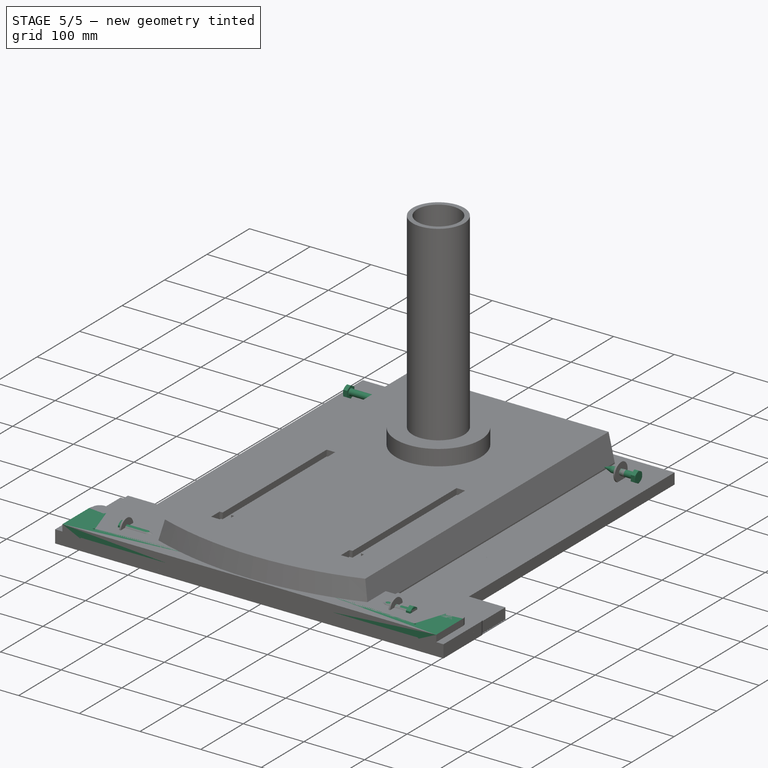
[diagram: stage 5 of 5 — iso view after this stage's code; geometry added in this stage tinted green]
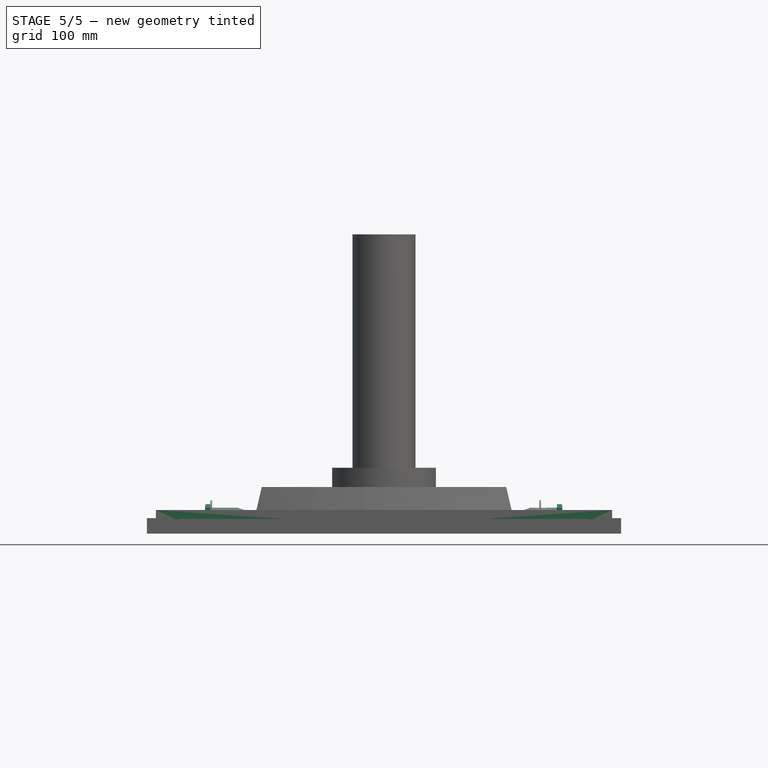
[diagram: stage 5 of 5 — front view after this stage's code; geometry added in this stage tinted green]
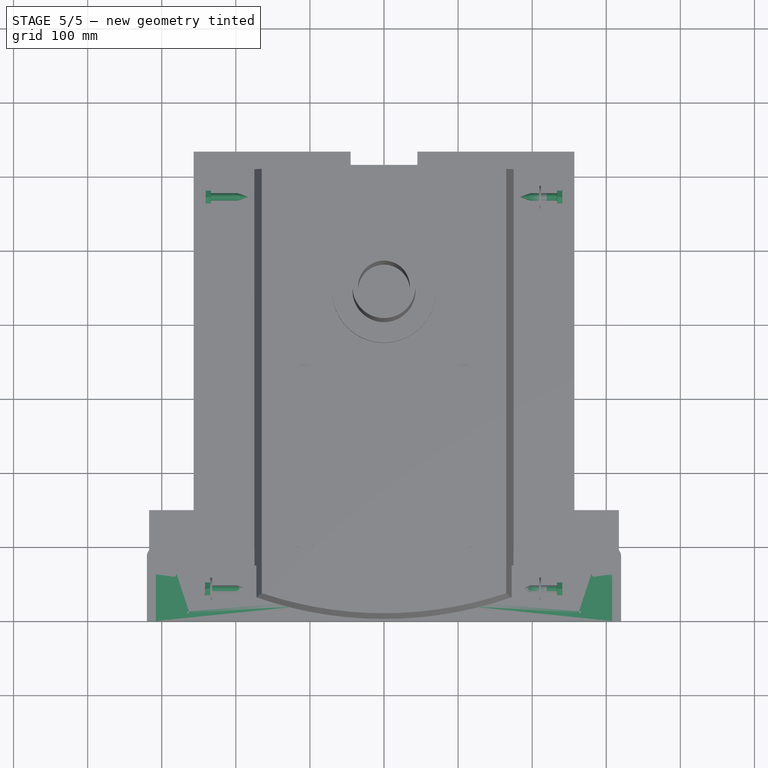
[diagram: stage 5 of 5 — top view after this stage's code; geometry added in this stage tinted green]
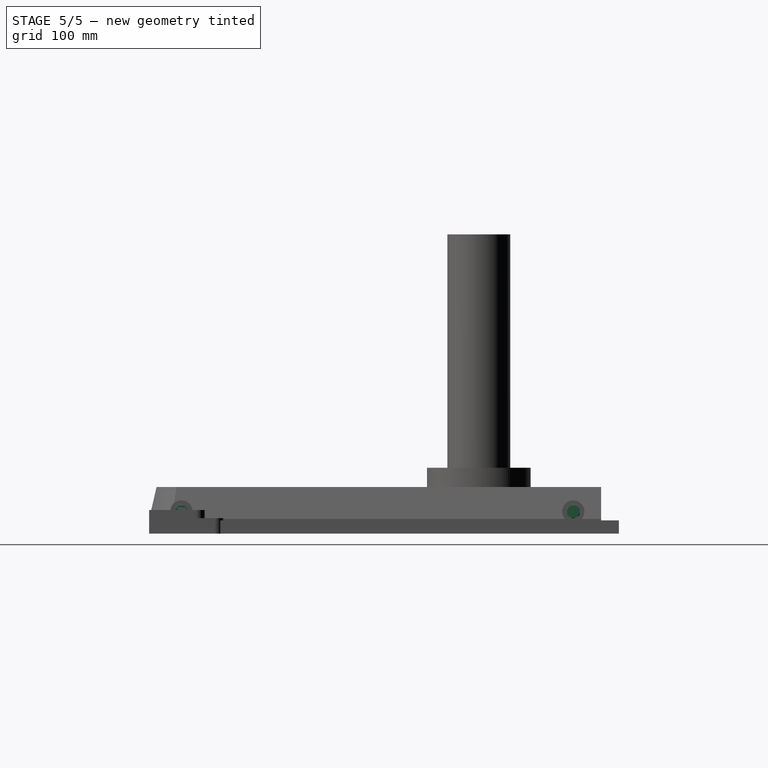
[diagram: stage 5 of 5 — right view after this stage's code; geometry added in this stage tinted green]
FEATURE [Spreadsheet::Sheet] Spreadsheet
  cells = A1='based on mobile base, ShopNotes 128; I1='nakrętka kłowa M8 DIN1624; I2='M8_D; J2(DIN1624_M8_D)==22.2 mm; A3='ply_18; B3(ply_18)==18 mm; E3='drill_press_iron_base_width; F3(drill_press_iron_base_width)==356 mm; I3='M8_d1; J3(DIN1624_M8_d1)==9.1 mm; A4='ply_12; B4(ply_12)==12 mm; E4='drill_press_iron_base_depth; F4(drill_press_iron_base_depth)==616 mm; I4='M8_a; J4(DIN1624_M8_a)==1.2 mm; A5='ply_6; B5(ply_6)==6 mm; E5='drill_press_iron_base_height; F5(drill_press_iron_base_height)==75 mm; I5='M8_L1; J5(DIN1624_M8_L1)==11 mm; A6='ply_3; B6(ply_3)==3 mm; E7='wheel_od; F7(wheel_od)==75 mm; G7='wheel - https://allegro.pl/oferta/kolo-pelne-75mm-kolko-metal-guma-kolka-do-wozkow-13051856647; I7='M10_D; J7(DIN1624_M10_D)==25.5 mm; A8='base_radius; B8(base_radius)==6 mm; E8='wheel_id; F8(wheel_id)==8 mm; I8='M10_d1; J8(DIN1624_M10_d1)==12 mm; A9='cleat_depth; B9(cleat_depth)==32 mm; E9='wheel_width; F9(wheel_width)==20 mm; I9='M10_a; J9(DIN1624_M10_a)==1.2 mm; A10='wheel_distance_l; B10(wheel_distance_l)==F7 / 2 + B8; I10='M10_L1; J10(DIN1624_M10_L1)==13 mm; A11='wheel_distance_h; B11(wheel_distance_h)==12 mm; I12='M12_D; J12(DIN1624_M12_D)==27 mm; I13='M12_d1; J13(DIN1624_M12_d1)==13.7 mm; A14='storage_cabinet_base_width; B14(storage_cabinet_base_width)==F3 + 4 * B9 + 2 * B3 + 6 mm; E14='steel_column_OD; F14(steel_column_OD)==90 mm; I14='M12_a; J14(DIN1624_M12_a)==1.6 mm; A15='storage_cabinet_base_depth; B15(storage_cabinet_base_depth)==F4 + 24 mm; E15='steel_column_depth; F15(steel_column_depth)==230 mm; I15='M12_L1; J15(DIN1624_M12_L1)==14.5 mm; A16='storage_cabinet_base_height; B16(storage_cabinet_base_height)==F7 - B11 + F5 + 12 mm; I17='mounting_screws_dia; J17(mounting_screws_dia)==4.5 mm; A18='storage_cabinet_height; B18(storage_cabinet_height)==530 mm; E18='drawer_guide_width; F18(drawer_guide_width)==12.7 mm; A19='sc_drawer_width; B19(sc_drawer_width)==B14 - 2 * B3 - 2 * F18; A20='sc_drawer_depth; B20(sc_drawer_depth)==B15 - F15 - B3 - 2 * B8; A21='sc_drawer_height; B21(sc_drawer_height)==(B18 - 2 * B3 - 4 * B5) / 5 - 6 mm; A26='system szufladowy: 7, 14, 21; B26='https://www.youtube.com/watch?v=Hw2arZq0hqs
FEATURE [Sketcher::SketchObject] Sketch001
  FullyConstrained = true
  MapMode = 5
  Support = -> [XY_Plane001]
  expr: Constraints[17] = 2 * Spreadsheet.base_radius
  expr: Constraints[6] = Spreadsheet.drill_press_iron_base_depth
  expr: Constraints[8] = Spreadsheet.drill_press_iron_base_height
  sketch-geometry (8):
    g0: LineSegment StartX=-296 StartY=75 StartZ=0 EndX=296 EndY=75 EndZ=0
    g1: LineSegment StartX=308 StartY=63 StartZ=0 EndX=308 EndY=0 EndZ=0
    g2: LineSegment StartX=308 StartY=0 StartZ=0 EndX=-308 EndY=0 EndZ=0
    g3: LineSegment StartX=-308 StartY=0 StartZ=0 EndX=-308 EndY=63 EndZ=0
    g4: ArcOfCircle CenterX=-296 CenterY=63 CenterZ=0 NormalX=0 NormalY=0 NormalZ=1 AngleXU=0 Radius=12 StartAngle=1.5708 EndAngle=3.14159
    g5: GeomPoint X=-308 Y=75 Z=0
    g6: ArcOfCircle CenterX=296 CenterY=63 CenterZ=0 NormalX=0 NormalY=0 NormalZ=1 AngleXU=0 Radius=12 StartAngle=0 EndAngle=1.5708
    g7: GeomPoint X=308 Y=75 Z=0
  constraints (19):
    c: Coincident(g1,g2)
    c: Coincident(g2,g3)
    c: Horizontal(g0)
    c: Horizontal(g2)
    c: Vertical(g1)
    c: Vertical(g3)
    c: DistanceX(g2,g2) = 616
    c: Symmetric(g2,g1,g-1)
    c: DistanceY(g3,g5) = 75
    c: PointOnObject(g5,g3)
    c: PointOnObject(g5,g0)
    c: Tangent(g3,g4) = 1.5708
    c: Tangent(g0,g4) = 1.5708
    c: PointOnObject(g7,g0)
    c: PointOnObject(g7,g1)
    c: Tangent(g0,g6) = 1.5708
    c: Tangent(g1,g6) = 1.5708
    c: Radius(g4) = 12
    c: Equal(g4,g6)
FEATURE [PartDesign::Pad] Pad001
  Direction = (0,0,1)
  Length = 32
  Length2 = 10
  Profile = -> Sketch001
  ReferenceAxis = -> Sketch001 [N_Axis]
  Type = 0
  expr: Length = Spreadsheet.cleat_depth
FEATURE [Sketcher::SketchObject] Sketch002
  FullyConstrained = true
  MapMode = 5
  Placement = pos=(0,0,32) rot=(0,0,1;0rad)
  Support = -> [Pad001]
  expr: Constraints[1] = Spreadsheet.drill_press_iron_base_depth / 2 - Spreadsheet.wheel_distance_l
  expr: Constraints[2] = Spreadsheet.wheel_distance_h
  sketch-geometry (1):
    g0: Circle CenterX=264.5 CenterY=12 CenterZ=0 NormalX=0 NormalY=0 NormalZ=1 AngleXU=0 Radius=1.5
  constraints (3):
    c: Diameter(g0) = 3
    c: DistanceX(g-1,g0) = 264.5
    c: DistanceY(g-1,g0) = 12
FEATURE [PartDesign::Pocket] Pocket
  BaseFeature = -> Pad001
  Direction = (0,0,-1)
  Length = 24
  Length2 = 5
  Profile = -> Sketch002
  ReferenceAxis = -> Sketch002 [N_Axis]
  Type = 0
  expr: Length = 3 / 4 * Spreadsheet.cleat_depth
FEATURE [PartDesign::Mirrored] Mirrored
  BaseFeature = -> Pocket
  MirrorPlane = -> Sketch002 [V_Axis]
  Originals = -> [Pocket]
FEATURE [PartDesign::Body] Body006  label="wheel003"
  Group = -> [Sketch008,Pad006]
  Origin = -> Origin007
  Placement = pos=(212,572.5,30) rot=(0,1,0;1.5708rad)
  Tip = -> Pad006
  expr: .Placement.Base.x = Spreadsheet.drill_press_iron_base_width / 2 + Spreadsheet.cleat_depth + 2 mm
  expr: .Placement.Base.y = Spreadsheet.drill_press_iron_base_depth - Spreadsheet.wheel_distance_l
  expr: .Placement.Base.z = Spreadsheet.wheel_distance_h + Spreadsheet.ply_18
FEATURE [Part::FeaturePython] Washer004  label="M10-Washer"  # Fasteners workbench fastener (typed FeaturePython)
  Placement = pos=(-232,572.5,30) rot=(0,-1,0;1.5708rad)
  baseObject = -> Body004 [Edge6]
  diameter = 9
  invert = false
  matchOuter = false
  offset = 0
  type = 7
FEATURE [Part::FeaturePython] Washer005  label="M10-Washer653"  # Fasteners workbench fastener (typed FeaturePython)
  Placement = pos=(-212,43.5,30) rot=(0,1,0;1.5708rad)
  baseObject = -> Body003 [Edge6]
  diameter = 9
  invert = true
  matchOuter = false
  offset = 0
  type = 7
FEATURE [Part::FeaturePython] Washer006  label="M10-Washer654"  # Fasteners workbench fastener (typed FeaturePython)
  Placement = pos=(232,572.5,30) rot=(0,1,0;1.5708rad)
  baseObject = -> Body006 [Edge6]
  diameter = 9
  invert = false
  matchOuter = false
  offset = 0
  type = 7
FEATURE [Part::FeaturePython] Washer007  label="M10-Washer655"  # Fasteners workbench fastener (typed FeaturePython)
  Placement = pos=(232,43.5,30) rot=(0,1,0;1.5708rad)
  baseObject = -> Body005 [Edge6]
  diameter = 9
  invert = false
  matchOuter = false
  offset = 0
  type = 7
FEATURE [Part::FeaturePython] Screw  label="10 mmx50-Screw"  # Fasteners workbench fastener (typed FeaturePython)
  Placement = pos=(-234.4,43.5,30) rot=(0,-1,0;1.5708rad)
  baseObject = -> Washer005 [Edge1]
  diameter = 5
  invert = true
  leftHanded = false
  length = 4
  lengthCustom = 50
  matchOuter = false
  offset = 24
  thread = false
  type = 16
FEATURE [Part::FeaturePython] Screw001  label="10 mmx50-Screw295"  # Fasteners workbench fastener (typed FeaturePython)
  Placement = pos=(-233.6,572.5,30) rot=(0,-1,0;1.5708rad)
  baseObject = -> Washer004 [Edge1]
  diameter = 5
  invert = false
  leftHanded = false
  length = 4
  lengthCustom = 50
  matchOuter = false
  offset = 0
  thread = false
  type = 16
FEATURE [Part::FeaturePython] Screw002  label="10 mmx50-Screw296"  # Fasteners workbench fastener (typed FeaturePython)
  Placement = pos=(233.6,43.5,30) rot=(0,1,0;1.5708rad)
  baseObject = -> Washer007 [Edge1]
  diameter = 5
  invert = false
  leftHanded = false
  length = 4
  lengthCustom = 50
  matchOuter = false
  offset = 0
  thread = false
  type = 16
FEATURE [Part::FeaturePython] Screw003  label="10 mmx50-Screw297"  # Fasteners workbench fastener (typed FeaturePython)
  Placement = pos=(233.6,572.5,30) rot=(0,1,0;1.5708rad)
  baseObject = -> Washer006 [Edge1]
  diameter = 5
  invert = false
  leftHanded = false
  length = 4
  lengthCustom = 50
  matchOuter = false
  offset = 0
  thread = false
  type = 16
FEATURE [Sketcher::SketchObject] Sketch013
  FullyConstrained = true
  MapMode = 5
  Placement = pos=(0,0,32) rot=(0,0,1;0rad)
  Support = -> [Mirrored]
  expr: Constraints[10] = Spreadsheet.drill_press_iron_base_height - (Spreadsheet.drill_press_iron_base_height - (Spreadsheet.wheel_distance_h + (Spreadsheet.wheel_od + Spreadsheet.base_radius) / 2)) / 2
  expr: Constraints[7] = Spreadsheet.drill_press_iron_base_height / 3
  expr: Constraints[8] = 1 / 3 * Spreadsheet.drill_press_iron_base_depth / 2
  expr: Constraints[9] = Spreadsheet.drill_press_iron_base_depth / 2 - 4 * Spreadsheet.base_radius
  sketch-geometry (5):
    g0: Circle CenterX=-284 CenterY=63.75 CenterZ=0 NormalX=0 NormalY=0 NormalZ=1 AngleXU=0 Radius=4
    g1: Circle CenterX=284 CenterY=63.75 CenterZ=0 NormalX=0 NormalY=0 NormalZ=1 AngleXU=0 Radius=4
    g2: Circle CenterX=-102.667 CenterY=25 CenterZ=0 NormalX=0 NormalY=0 NormalZ=1 AngleXU=0 Radius=4
    g3: Circle CenterX=-3.8e-15 CenterY=25 CenterZ=0 NormalX=0 NormalY=0 NormalZ=1 AngleXU=0 Radius=4
    g4: Circle CenterX=102.667 CenterY=25 CenterZ=0 NormalX=0 NormalY=0 NormalZ=1 AngleXU=0 Radius=4
  constraints (12):
    c: Equal(g0,g2)
    c: Equal(g2,g3)
    c: Equal(g3,g4)
    c: Equal(g4,g1)
    c: Symmetric(g0,g1,g-2)
    c: Symmetric(g2,g4,g3)
    c: Diameter(g0) = 8
    c: DistanceY(g-1,g3) = 25
    c: DistanceX(g2,g-1) = 102.667
    c: DistanceX(g0,g-1) = 284
    c: DistanceY(g-1,g0) = 63.75
    c: Symmetric(g2,g4,g-2)
FEATURE [PartDesign::Pocket] Pocket005
  BaseFeature = -> Mirrored
  Direction = (0,0,-1)
  Length = 10
  Length2 = 5
  Profile = -> Sketch013
  ReferenceAxis = -> Sketch013 [N_Axis]
  Type = 0
FEATURE [Sketcher::SketchObject] Sketch015
  FullyConstrained = true
  MapMode = 5
  Placement = pos=(0,0,0) rot=(1,0,0;1.5708rad)
  Support = -> [Pocket005]
  expr: Constraints[1] = Spreadsheet.drill_press_iron_base_depth / 2 - 32 mm
  expr: Constraints[2] = Spreadsheet.cleat_depth / 2
  sketch-geometry (1):
    g0: Circle CenterX=276 CenterY=16 CenterZ=0 NormalX=0 NormalY=0 NormalZ=1 AngleXU=0 Radius=4
  constraints (3):
    c: Diameter(g0) = 8
    c: DistanceX(g-1,g0) = 276
    c: DistanceY(g-1,g0) = 16
FEATURE [PartDesign::Pocket] Pocket007
  BaseFeature = -> Pocket005
  Direction = (0,1,-2e-16)
  Length = 12
  Length2 = 5
  Profile = -> Sketch015
  ReferenceAxis = -> Sketch015 [N_Axis]
  Type = 0
FEATURE [PartDesign::LinearPattern] LinearPattern002
  BaseFeature = -> Pocket007
  Direction = -> Sketch015 [H_Axis]
  Length = 552
  Mode = 0
  Occurrences = 5
  Offset = 138
  Originals = -> [Pocket007]
  Reversed = true
  expr: Length = Spreadsheet.drill_press_iron_base_depth - 2 * 32 mm
FEATURE [PartDesign::Body] Body001  label="cleat_left"
  Group = -> [Sketch001,Pad001,Sketch002,Pocket,Mirrored,Sketch013,Pocket005,Sketch015,Pocket007,LinearPattern002]
  Origin = -> Origin001
  Placement = pos=(-178,308,18) rot=(0.57735,-0.57735,-0.57735;2.0944rad)
  Tip = -> LinearPattern002
  expr: .Placement.Base.x = -Spreadsheet.drill_press_iron_base_width / 2
  expr: .Placement.Base.y = Spreadsheet.drill_press_iron_base_depth / 2
  expr: .Placement.Base.z = Spreadsheet.ply_18
FEATURE [Sketcher::SketchObject] Sketch016
  FullyConstrained = true
  MapMode = 5
  Support = -> [XY_Plane009]
  expr: Constraints[17] = 2 * Spreadsheet.base_radius
  expr: Constraints[6] = Spreadsheet.drill_press_iron_base_depth
  expr: Constraints[8] = Spreadsheet.drill_press_iron_base_height
  sketch-geometry (8):
    g0: LineSegment StartX=-296 StartY=75 StartZ=0 EndX=296 EndY=75 EndZ=0
    g1: LineSegment StartX=308 StartY=63 StartZ=0 EndX=308 EndY=0 EndZ=0
    g2: LineSegment StartX=308 StartY=0 StartZ=0 EndX=-308 EndY=0 EndZ=0
    g3: LineSegment StartX=-308 StartY=0 StartZ=0 EndX=-308 EndY=63 EndZ=0
    g4: ArcOfCircle CenterX=-296 CenterY=63 CenterZ=0 NormalX=0 NormalY=0 NormalZ=1 AngleXU=0 Radius=12 StartAngle=1.5708 EndAngle=3.14159
    g5: GeomPoint X=-308 Y=75 Z=0
    g6: ArcOfCircle CenterX=296 CenterY=63 CenterZ=0 NormalX=0 NormalY=0 NormalZ=1 AngleXU=0 Radius=12 StartAngle=0 EndAngle=1.5708
    g7: GeomPoint X=308 Y=75 Z=0
  constraints (19):
    c: Coincident(g1,g2)
    c: Coincident(g2,g3)
    c: Horizontal(g0)
    c: Horizontal(g2)
    c: Vertical(g1)
    c: Vertical(g3)
    c: DistanceX(g2,g2) = 616
    c: Symmetric(g2,g1,g-1)
    c: DistanceY(g3,g5) = 75
    c: PointOnObject(g5,g3)
    c: PointOnObject(g5,g0)
    c: Tangent(g3,g4) = 1.5708
    c: Tangent(g0,g4) = 1.5708
    c: PointOnObject(g7,g0)
    c: PointOnObject(g7,g1)
    c: Tangent(g0,g6) = 1.5708
    c: Tangent(g1,g6) = 1.5708
    c: Radius(g4) = 12
    c: Equal(g4,g6)
FEATURE [PartDesign::Pad] Pad008
  Direction = (0,0,1)
  Length = 32
  Length2 = 10
  Profile = -> Sketch016
  ReferenceAxis = -> Sketch016 [N_Axis]
  Type = 0
  expr: Length = Spreadsheet.cleat_depth
FEATURE [Sketcher::SketchObject] Sketch017
  FullyConstrained = true
  MapMode = 5
  Placement = pos=(0,0,32) rot=(0,0,1;0rad)
  Support = -> [Pad008]
  expr: Constraints[1] = Spreadsheet.drill_press_iron_base_depth / 2 - Spreadsheet.wheel_distance_l
  expr: Constraints[2] = Spreadsheet.wheel_distance_h
  sketch-geometry (1):
    g0: Circle CenterX=264.5 CenterY=12 CenterZ=0 NormalX=0 NormalY=0 NormalZ=1 AngleXU=0 Radius=1.5
  constraints (3):
    c: Diameter(g0) = 3
    c: DistanceX(g-1,g0) = 264.5
    c: DistanceY(g-1,g0) = 12
FEATURE [PartDesign::Pocket] Pocket008
  BaseFeature = -> Pad008
  Direction = (0,0,-1)
  Length = 24
  Length2 = 5
  Profile = -> Sketch017
  ReferenceAxis = -> Sketch017 [N_Axis]
  Type = 0
  expr: Length = 3 / 4 * Spreadsheet.cleat_depth
FEATURE [PartDesign::Mirrored] Mirrored003
  BaseFeature = -> Pocket008
  MirrorPlane = -> Sketch017 [V_Axis]
  Originals = -> [Pocket008]
FEATURE [Sketcher::SketchObject] Sketch018
  FullyConstrained = true
  MapMode = 5
  Placement = pos=(0,0,32) rot=(0,0,1;0rad)
  Support = -> [Mirrored003]
  expr: Constraints[10] = Spreadsheet.drill_press_iron_base_height - (Spreadsheet.drill_press_iron_base_height - (Spreadsheet.wheel_distance_h + (Spreadsheet.wheel_od + Spreadsheet.base_radius) / 2)) / 2
  expr: Constraints[7] = Spreadsheet.drill_press_iron_base_height / 3
  expr: Constraints[8] = 1 / 3 * Spreadsheet.drill_press_iron_base_depth / 2
  expr: Constraints[9] = Spreadsheet.drill_press_iron_base_depth / 2 - 4 * Spreadsheet.base_radius
  sketch-geometry (5):
    g0: Circle CenterX=-284 CenterY=63.75 CenterZ=0 NormalX=0 NormalY=0 NormalZ=1 AngleXU=0 Radius=4
    g1: Circle CenterX=284 CenterY=63.75 CenterZ=0 NormalX=0 NormalY=0 NormalZ=1 AngleXU=0 Radius=4
    g2: Circle CenterX=-102.667 CenterY=25 CenterZ=0 NormalX=0 NormalY=0 NormalZ=1 AngleXU=0 Radius=4
    g3: Circle CenterX=-3.8e-15 CenterY=25 CenterZ=0 NormalX=0 NormalY=0 NormalZ=1 AngleXU=0 Radius=4
    g4: Circle CenterX=102.667 CenterY=25 CenterZ=0 NormalX=0 NormalY=0 NormalZ=1 AngleXU=0 Radius=4
  constraints (12):
    c: Equal(g0,g2)
    c: Equal(g2,g3)
    c: Equal(g3,g4)
    c: Equal(g4,g1)
    c: Symmetric(g0,g1,g-2)
    c: Symmetric(g2,g4,g3)
    c: Diameter(g0) = 8
    c: DistanceY(g-1,g3) = 25
    c: DistanceX(g2,g-1) = 102.667
    c: DistanceX(g0,g-1) = 284
    c: DistanceY(g-1,g0) = 63.75
    c: Symmetric(g2,g4,g-2)
FEATURE [PartDesign::Pocket] Pocket009
  BaseFeature = -> Mirrored003
  Direction = (0,0,-1)
  Length = 10
  Length2 = 5
  Profile = -> Sketch018
  ReferenceAxis = -> Sketch018 [N_Axis]
  Type = 0
FEATURE [Sketcher::SketchObject] Sketch019
  FullyConstrained = true
  MapMode = 5
  Placement = pos=(0,0,0) rot=(1,0,0;1.5708rad)
  Support = -> [Pocket009]
  expr: Constraints[1] = Spreadsheet.drill_press_iron_base_depth / 2 - 32 mm
  expr: Constraints[2] = Spreadsheet.cleat_depth / 2
  sketch-geometry (1):
    g0: Circle CenterX=276 CenterY=16 CenterZ=0 NormalX=0 NormalY=0 NormalZ=1 AngleXU=0 Radius=4
  constraints (3):
    c: Diameter(g0) = 8
    c: DistanceX(g-1,g0) = 276
    c: DistanceY(g-1,g0) = 16
FEATURE [PartDesign::Pocket] Pocket010
  BaseFeature = -> Pocket009
  Direction = (0,1,-2e-16)
  Length = 12
  Length2 = 5
  Profile = -> Sketch019
  ReferenceAxis = -> Sketch019 [N_Axis]
  Type = 0
FEATURE [PartDesign::LinearPattern] LinearPattern003
  BaseFeature = -> Pocket010
  Direction = -> Sketch019 [H_Axis]
  Length = 552
  Mode = 0
  Occurrences = 5
  Offset = 138
  Originals = -> [Pocket010]
  Reversed = true
  expr: Length = Spreadsheet.drill_press_iron_base_depth - 2 * 32 mm
FEATURE [Sketcher::SketchObject] Sketch025
  ExternalGeometry = -> [Pocket014]
  FullyConstrained = true
  MapMode = 5
  Placement = pos=(0,24,0) rot=(1,0,0;1.5708rad)
  Support = -> [Pocket014]
  expr: Constraints[1] = Spreadsheet.DIN1624_M10_D
  sketch-geometry (1):
    g0: Circle CenterX=207 CenterY=16 CenterZ=0 NormalX=0 NormalY=0 NormalZ=1 AngleXU=0 Radius=12.75
  constraints (2):
    c: Coincident(g0,g-3)
    c: Diameter(g0) = 25.5
FEATURE [PartDesign::Pocket] Pocket015
  BaseFeature = -> Pocket014
  Direction = (0,1,-2e-16)
  Length = 1.8
  Length2 = 5
  Profile = -> Sketch025
  ReferenceAxis = -> Sketch025 [N_Axis]
  Type = 0
  expr: Length = 1.5 * Spreadsheet.DIN1624_M10_a
FEATURE [PartDesign::Mirrored] Mirrored006
  BaseFeature = -> Pocket015
  MirrorPlane = -> Sketch024 [V_Axis]
  Originals = -> [Pocket014]
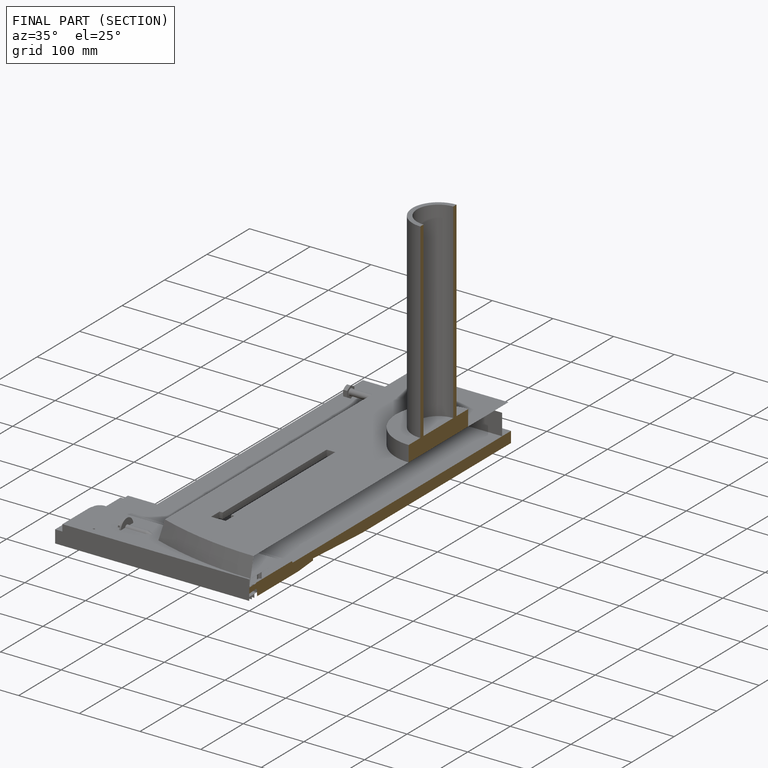
[diagram: finished part — half-section view (interior)]
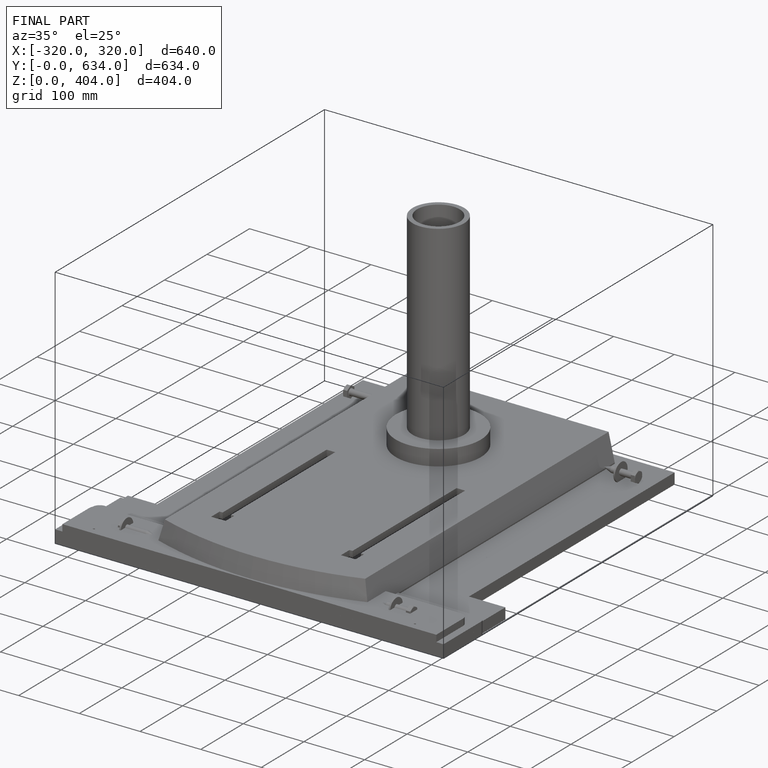
[diagram: finished part — iso view with bounding-box wireframe]
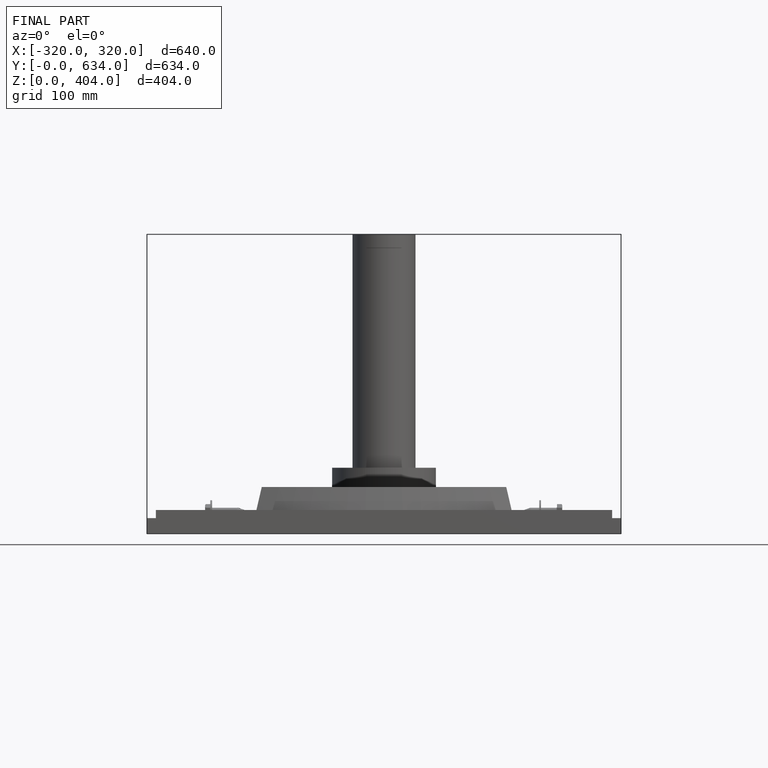
[diagram: finished part — front view with bounding-box wireframe]
